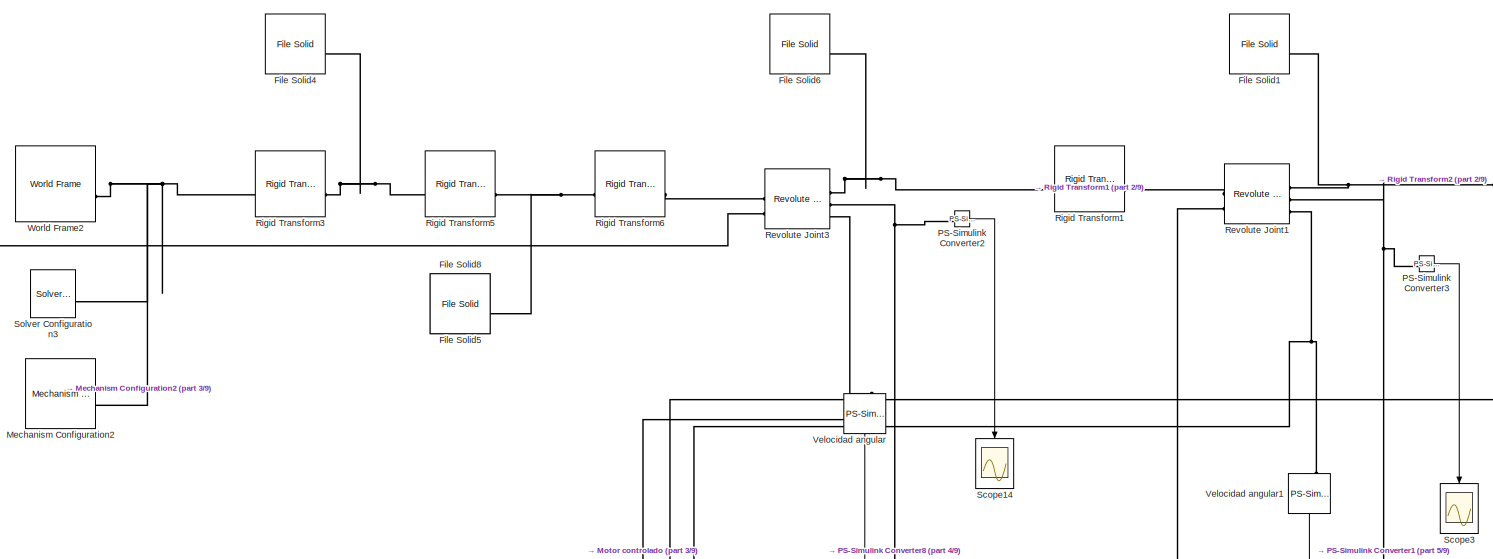
[diagram: root canvas - part 1/9, top left region]
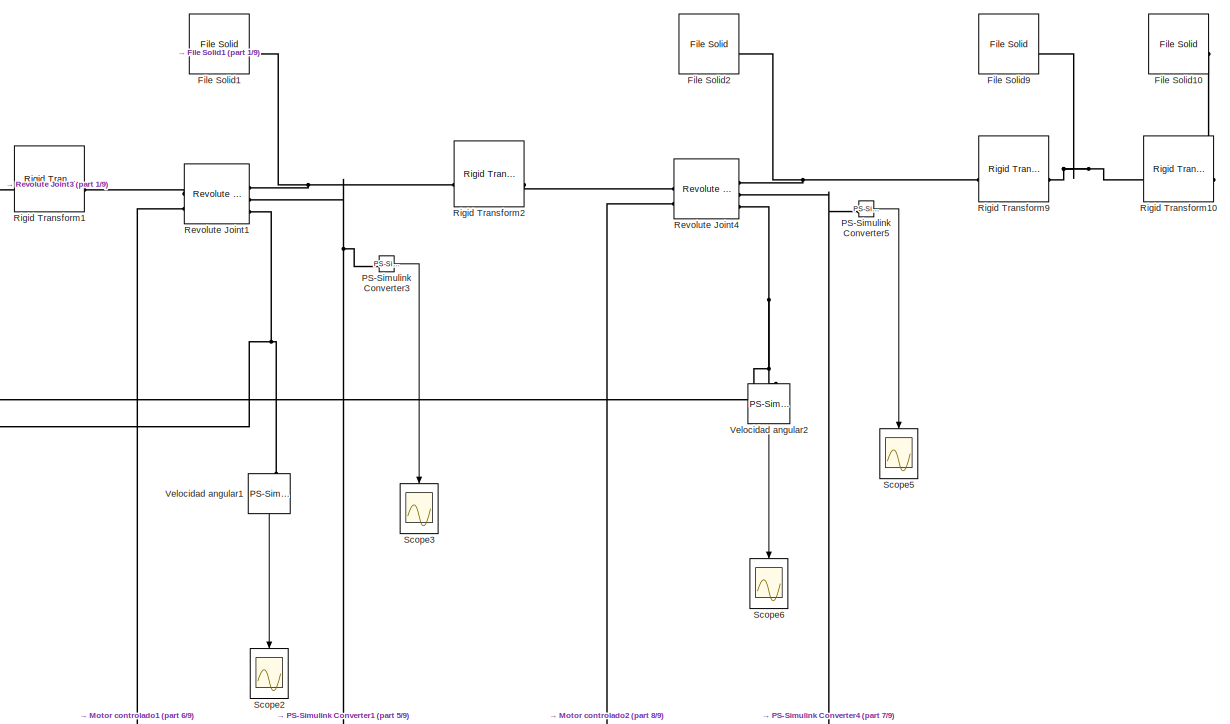
[diagram: root canvas - part 2/9, top center region]
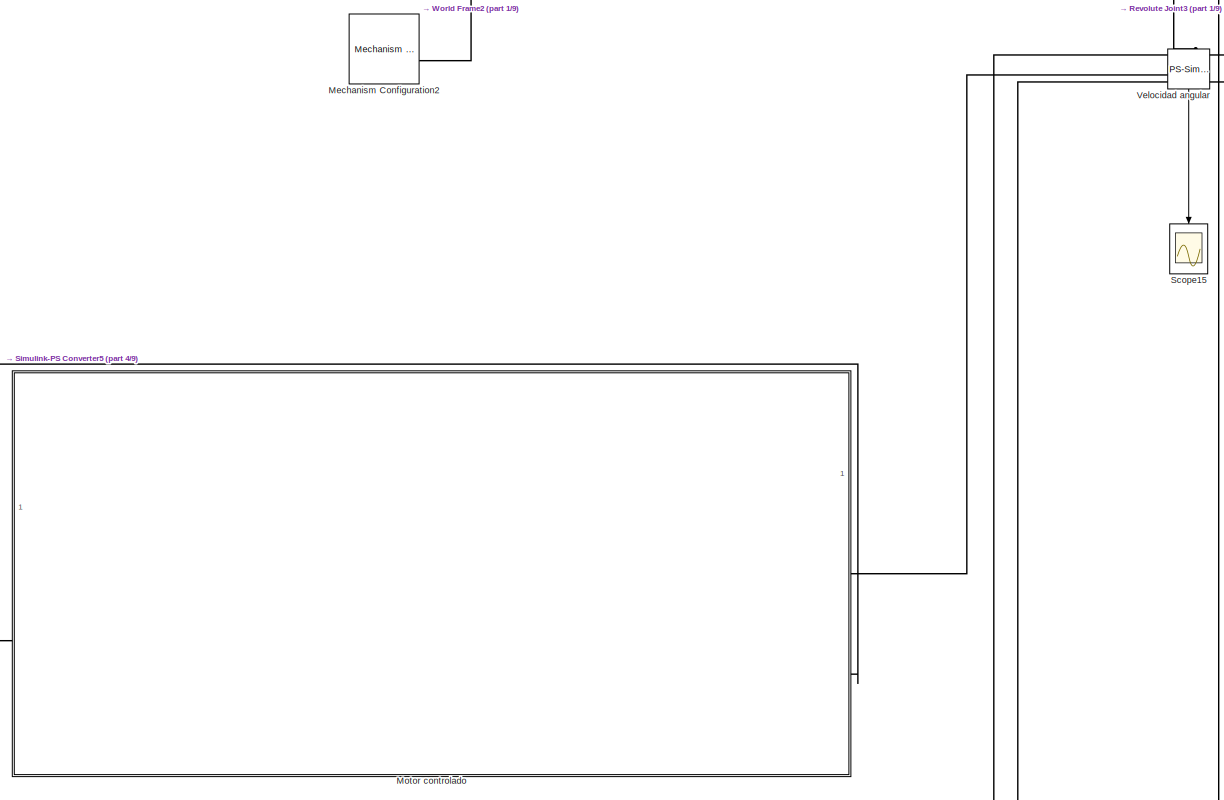
[diagram: root canvas - part 3/9, top left region]
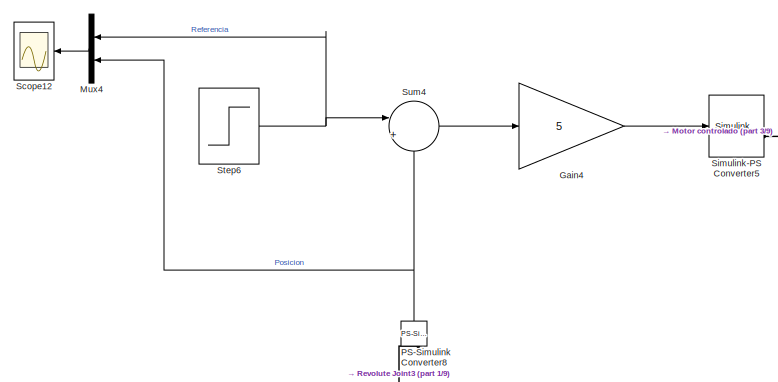
[diagram: root canvas - part 4/9, top left region]
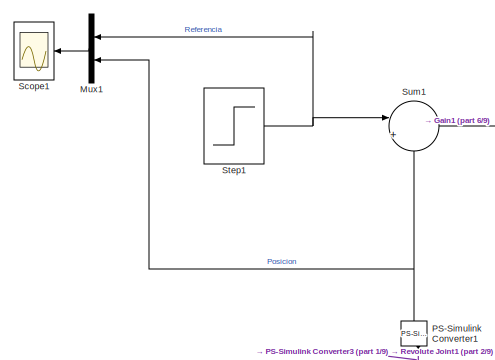
[diagram: root canvas - part 5/9, top left region]
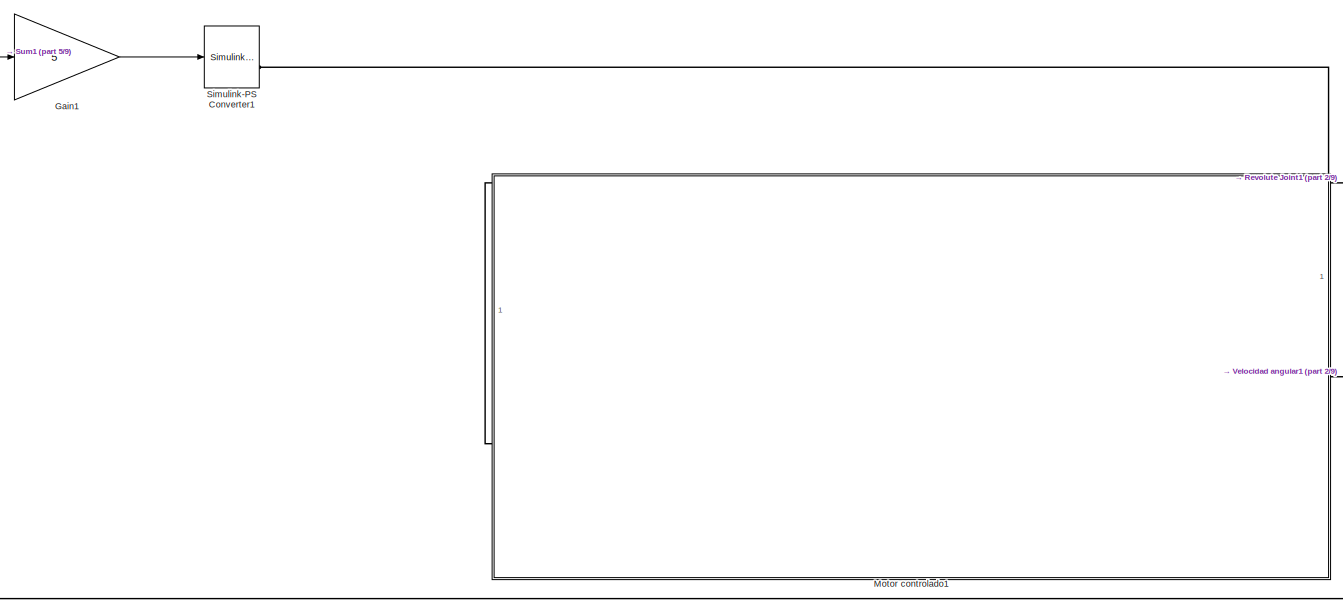
[diagram: root canvas - part 6/9, top left region]
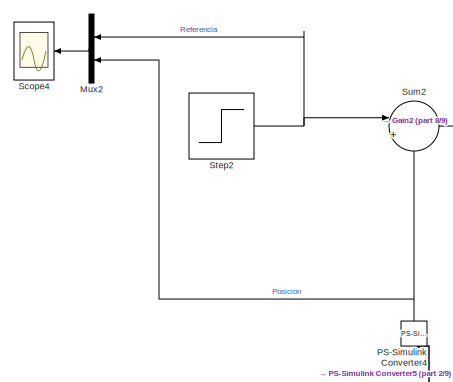
[diagram: root canvas - part 7/9, middle left region]
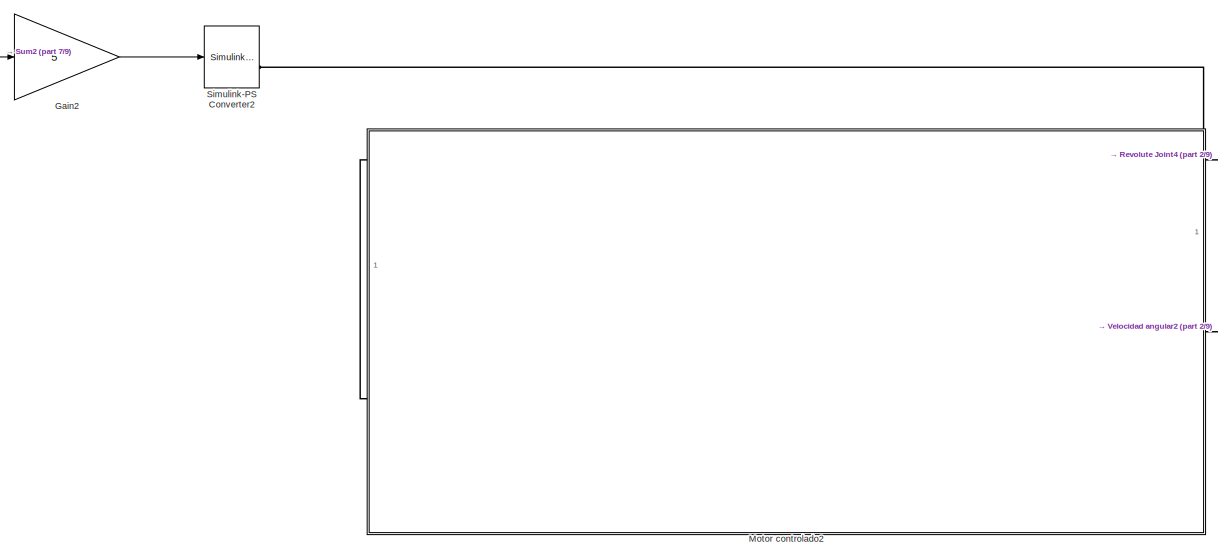
[diagram: root canvas - part 8/9, middle left region]
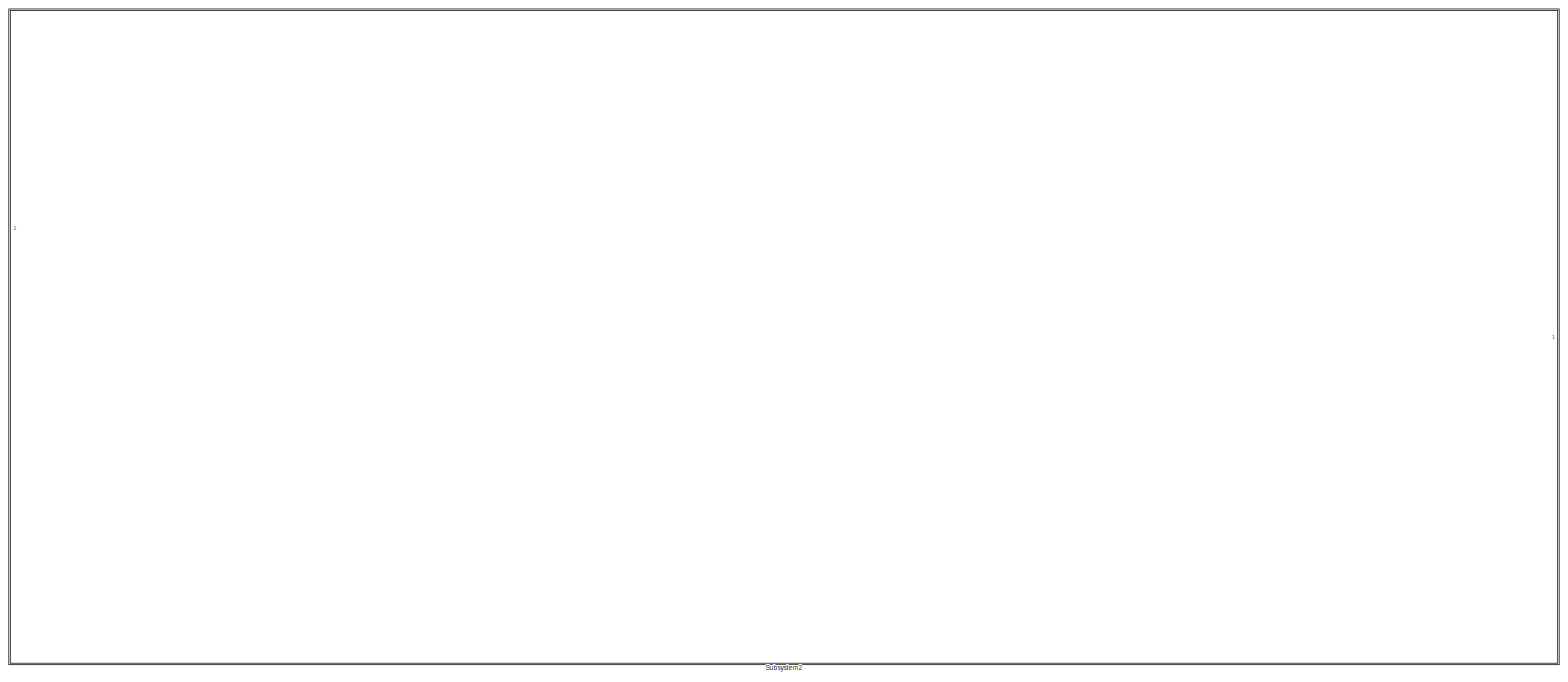
[diagram: root canvas - part 9/9, bottom right region]
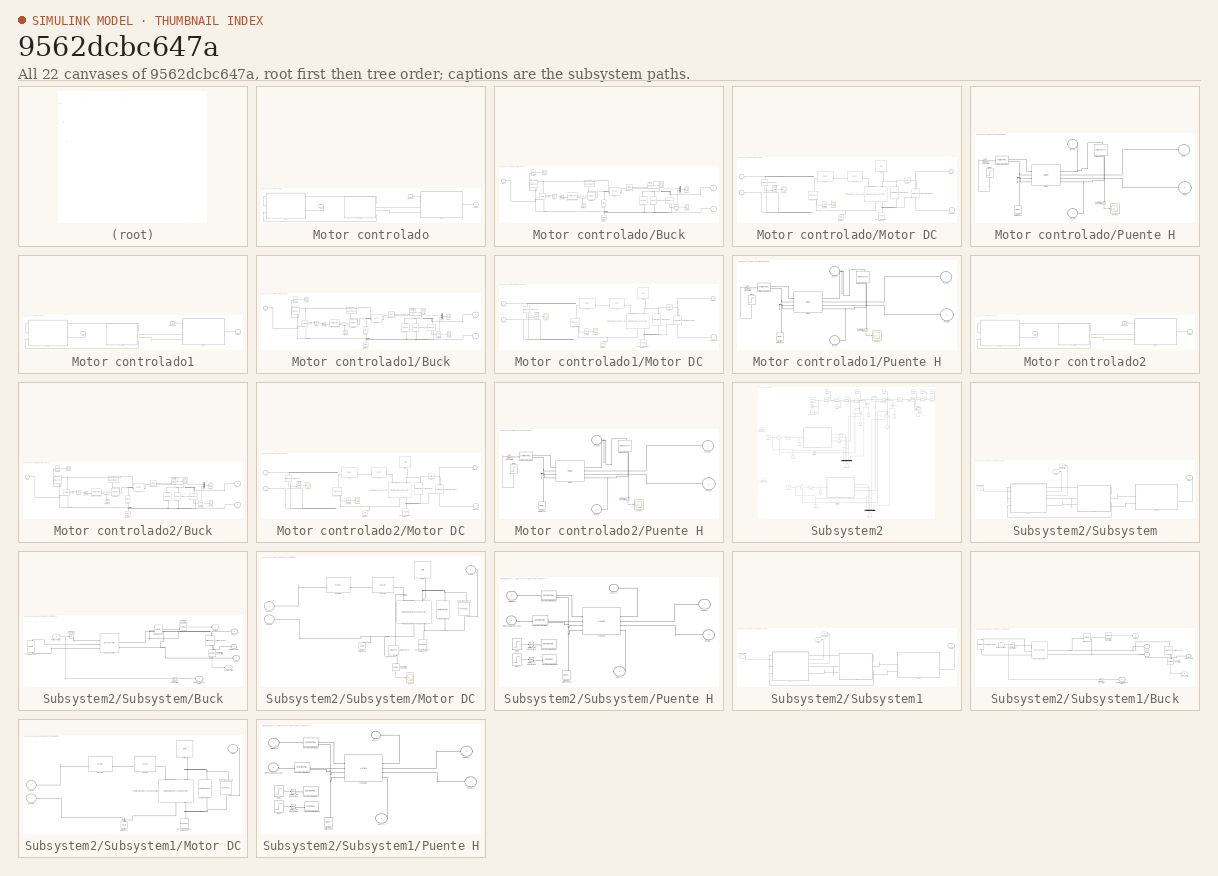
[diagram: thumbnail index - all 22 canvases of the model, root first then tree order]
MODEL slx_9562dcbc647a
KIND model
CONFIG AbsTol = auto
CONFIG EnableMultiTasking = on
CONFIG FixedStep = 0.002
CONFIG MaxStep = auto
CONFIG MinStep = auto
CONFIG RelTol = 1e-3
CONFIG SampleTimeConstraint = Unconstrained
CONFIG SolverName = VariableStepAuto
CONFIG StartTime = 0.0
CONFIG StopTime = 10.0
BLOCK [Reference] File Solid1  REF=sm_lib/Body Elements/File Solid
  SourceBlock = sm_lib/Body Elements/File Solid
  SourceType = File Solid
BLOCK [Reference] File Solid10  REF=sm_lib/Body Elements/File Solid
  SourceBlock = sm_lib/Body Elements/File Solid
  SourceType = File Solid
BLOCK [Reference] File Solid2  REF=sm_lib/Body Elements/File Solid
  SourceBlock = sm_lib/Body Elements/File Solid
  SourceType = File Solid
BLOCK [Reference] File Solid4  REF=sm_lib/Body Elements/File Solid
  SourceBlock = sm_lib/Body Elements/File Solid
  SourceType = File Solid
BLOCK [Reference] File Solid5  REF=sm_lib/Body Elements/File Solid
  SourceBlock = sm_lib/Body Elements/File Solid
  SourceType = File Solid
BLOCK [Reference] File Solid6  REF=sm_lib/Body Elements/File Solid
  SourceBlock = sm_lib/Body Elements/File Solid
  SourceType = File Solid
BLOCK [Reference] File Solid8  REF=sm_lib/Body Elements/File Solid
  SourceBlock = sm_lib/Body Elements/File Solid
  SourceType = File Solid
BLOCK [Reference] File Solid9  REF=sm_lib/Body Elements/File Solid
  SourceBlock = sm_lib/Body Elements/File Solid
  SourceType = File Solid
BLOCK [Gain] Gain1
  Gain = 5
BLOCK [Gain] Gain2
  Gain = 5
BLOCK [Gain] Gain4
  Gain = 5
BLOCK [Reference] Mechanism Configuration2  REF=sm_lib/Utilities/Mechanism
Configuration
  SourceBlock = sm_lib/Utilities/Mechanism\nConfiguration
  SourceType = Mechanism\nConfiguration
BLOCK [SubSystem] Motor controlado
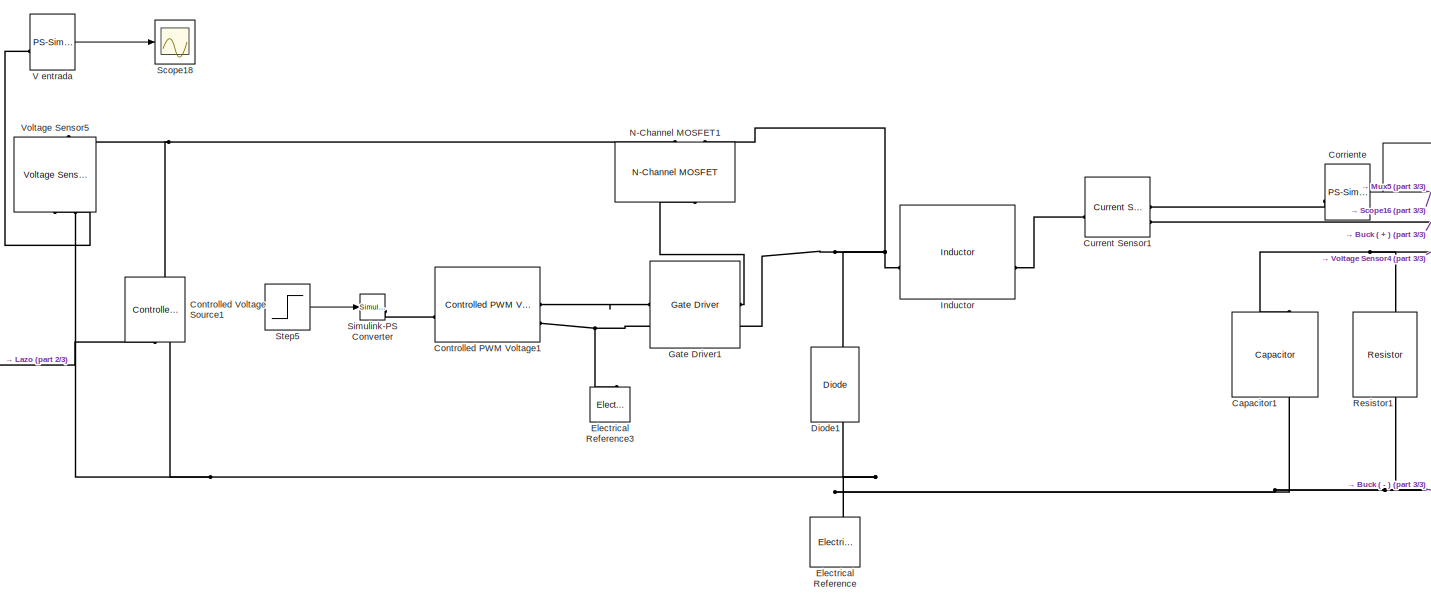
[diagram: Motor controlado/Buck - part 1/3, center side, full height]
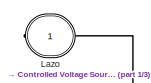
[diagram: Motor controlado/Buck - part 2/3, top left region]
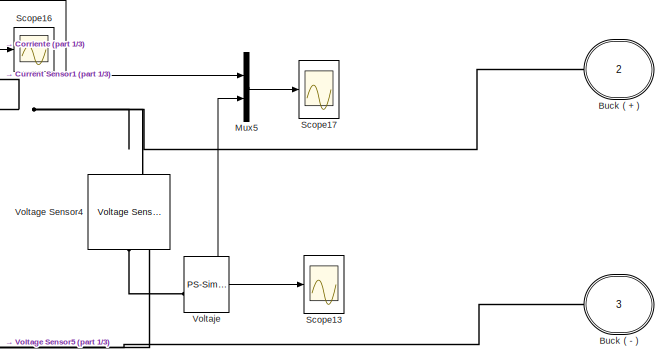
[diagram: Motor controlado/Buck - part 3/3, middle right region]
BLOCK [SubSystem] Motor controlado/Buck
BLOCK [PMIOPort] Motor controlado/Buck/Buck ( + )
  NameLocation = top
  Port = 2
  Side = Left
BLOCK [PMIOPort] Motor controlado/Buck/Buck ( - )
  NameLocation = top
  Port = 3
  Side = Left
BLOCK [Reference] Motor controlado/Buck/Capacitor1  REF=fl_lib/Electrical/Electrical Elements/Capacitor
  NameLocation = left
  SourceBlock = fl_lib/Electrical/Electrical Elements/Capacitor
  SourceType = Capacitor
BLOCK [Reference] Motor controlado/Buck/Controlled PWM Voltage1  REF=ee_lib/Integrated Circuits/Controlled PWM
Voltage
  SourceBlock = ee_lib/Integrated Circuits/Controlled PWM\nVoltage
  SourceType = Controlled PWM\nVoltage
BLOCK [Reference] Motor controlado/Buck/Controlled Voltage Source1  REF=fl_lib/Electrical/Electrical Sources/Controlled Voltage
Source
  NameLocation = right
  SourceBlock = fl_lib/Electrical/Electrical Sources/Controlled Voltage\nSource
  SourceType = Controlled Voltage\nSource
BLOCK [Reference] Motor controlado/Buck/Corriente  REF=nesl_utility/PS-Simulink
Converter
  SourceBlock = nesl_utility/PS-Simulink\nConverter
  SourceType = PS-Simulink\nConverter
BLOCK [Reference] Motor controlado/Buck/Current Sensor1  REF=fl_lib/Electrical/Electrical Sensors/Current Sensor
  SourceBlock = fl_lib/Electrical/Electrical Sensors/Current Sensor
  SourceType = Current Sensor
BLOCK [Reference] Motor controlado/Buck/Diode1  REF=ee_lib/Semiconductors &
Converters/Diode
  NameLocation = right
  SourceBlock = ee_lib/Semiconductors &\nConverters/Diode
  SourceType = Diode
BLOCK [Reference] Motor controlado/Buck/Electrical Reference  REF=fl_lib/Electrical/Electrical Elements/Electrical Reference
  NameLocation = right
  SourceBlock = fl_lib/Electrical/Electrical Elements/Electrical Reference
  SourceType = Electrical Reference
BLOCK [Reference] Motor controlado/Buck/Electrical Reference3  REF=fl_lib/Electrical/Electrical Elements/Electrical Reference
  NameLocation = right
  SourceBlock = fl_lib/Electrical/Electrical Elements/Electrical Reference
  SourceType = Electrical Reference
BLOCK [Reference] Motor controlado/Buck/Gate Driver1  REF=ee_lib/Semiconductors &
Converters/Gate Driver
  SourceBlock = ee_lib/Semiconductors &\nConverters/Gate Driver
  SourceType = Gate Driver
BLOCK [Reference] Motor controlado/Buck/Inductor  REF=fl_lib/Electrical/Electrical Elements/Inductor
  SourceBlock = fl_lib/Electrical/Electrical Elements/Inductor
  SourceType = Inductor
BLOCK [PMIOPort] Motor controlado/Buck/Lazo
  Side = Right
BLOCK [Mux] Motor controlado/Buck/Mux5
  DisplayOption = bar
  Inputs = 2
BLOCK [Reference] Motor controlado/Buck/N-Channel MOSFET1  REF=ee_lib/Semiconductors &
Converters/N-Channel MOSFET
  NameLocation = right
  SourceBlock = ee_lib/Semiconductors &\nConverters/N-Channel MOSFET
  SourceType = N-Channel MOSFET
BLOCK [Reference] Motor controlado/Buck/Resistor1  REF=fl_lib/Electrical/Electrical Elements/Resistor
  NameLocation = left
  SourceBlock = fl_lib/Electrical/Electrical Elements/Resistor
  SourceType = Resistor
BLOCK [Scope] Motor controlado/Buck/Scope13
  Floating = off
  NumInputPorts = 1
  ScopeSpecificationString = Simulink.scopes.TimeScopeBlockCfg('CurrentConfiguration', extmgr.ConfigurationSet(extmgr.Configuration('Core','General UI',true),extmgr.Configuration('Core','Source UI',true),extmgr.Configuration('Sources','WiredSimulink',true,'DataLoggingVariableName','ScopeData15'),extmgr.Configuration('Visuals','Time Domain',true,'SerializedDisplays',{struct('MinYLimReal','-2.20733','MaxYLimReal','19.86599','YL...<+1569ch>
BLOCK [Scope] Motor controlado/Buck/Scope16
  Floating = off
  NumInputPorts = 1
  ScopeSpecificationString = Simulink.scopes.TimeScopeBlockCfg('CurrentConfiguration', extmgr.ConfigurationSet(extmgr.Configuration('Core','General UI',true),extmgr.Configuration('Core','Source UI',true),extmgr.Configuration('Sources','WiredSimulink',true,'DataLoggingVariableName','ScopeData16'),extmgr.Configuration('Visuals','Time Domain',true,'SerializedDisplays',{struct('MinYLimReal','-1.19236','MaxYLimReal','10.73127','YL...<+1571ch>
BLOCK [Scope] Motor controlado/Buck/Scope17
  Floating = off
  NumInputPorts = 1
  ScopeSpecificationString = Simulink.scopes.TimeScopeBlockCfg('CurrentConfiguration', extmgr.ConfigurationSet(extmgr.Configuration('Core','General UI',true),extmgr.Configuration('Core','Source UI',true),extmgr.Configuration('Sources','WiredSimulink',true,'DataLoggingVariableName','ScopeData17'),extmgr.Configuration('Visuals','Time Domain',true,'SerializedDisplays',{struct('MinYLimReal','-2.20733','MaxYLimReal','19.86599','YL...<+1664ch>
BLOCK [Scope] Motor controlado/Buck/Scope18
  Floating = off
  NumInputPorts = 1
  ScopeSpecificationString = Simulink.scopes.TimeScopeBlockCfg('CurrentConfiguration', extmgr.ConfigurationSet(extmgr.Configuration('Core','General UI',true),extmgr.Configuration('Core','Source UI',true),extmgr.Configuration('Sources','WiredSimulink',true,'DataLoggingVariableName','ScopeData18'),extmgr.Configuration('Visuals','Time Domain',true,'SerializedDisplays',{struct('MinYLimReal','-1.77377','MaxYLimReal','20.03484','YL...<+1487ch>  <repeated x3 — deduplicated; at blocks: Scope18>
BLOCK [Reference] Motor controlado/Buck/Simulink-PS Converter  REF=nesl_utility/Simulink-PS
Converter
  SourceBlock = nesl_utility/Simulink-PS\nConverter
  SourceType = Simulink-PS\nConverter
BLOCK [Step] Motor controlado/Buck/Step5
  After = 5
  SampleTime = 0
  Time = 0
BLOCK [Reference] Motor controlado/Buck/V entrada  REF=nesl_utility/PS-Simulink
Converter
  SourceBlock = nesl_utility/PS-Simulink\nConverter
  SourceType = PS-Simulink\nConverter
BLOCK [Reference] Motor controlado/Buck/Voltage Sensor4  REF=fl_lib/Electrical/Electrical Sensors/Voltage Sensor
  NameLocation = right
  SourceBlock = fl_lib/Electrical/Electrical Sensors/Voltage Sensor
  SourceType = Voltage Sensor
BLOCK [Reference] Motor controlado/Buck/Voltage Sensor5  REF=fl_lib/Electrical/Electrical Sensors/Voltage Sensor
  NameLocation = right
  SourceBlock = fl_lib/Electrical/Electrical Sensors/Voltage Sensor
  SourceType = Voltage Sensor
BLOCK [Reference] Motor controlado/Buck/Voltaje  REF=nesl_utility/PS-Simulink
Converter
  SourceBlock = nesl_utility/PS-Simulink\nConverter
  SourceType = PS-Simulink\nConverter
BLOCK [PMIOPort] Motor controlado/Entrada w
  Port = 2
  Side = Right
BLOCK [PMIOPort] Motor controlado/Lazo
  NameLocation = top
  Port = 3
  Side = Right
BLOCK [SubSystem] Motor controlado/Motor DC
BLOCK [Reference] Motor controlado/Motor DC/Electrical Reference1  REF=fl_lib/Electrical/Electrical Elements/Electrical Reference
  NameLocation = right
  SourceBlock = fl_lib/Electrical/Electrical Elements/Electrical Reference
  SourceType = Electrical Reference
BLOCK [PMIOPort] Motor controlado/Motor DC/Entrada w
  Port = 2
  Side = Right
BLOCK [Reference] Motor controlado/Motor DC/Gear Box  REF=fl_lib/Mechanical/Mechanisms/Gear Box
  SourceBlock = fl_lib/Mechanical/Mechanisms/Gear Box
  SourceType = Gear Box
BLOCK [Reference] Motor controlado/Motor DC/Inductor2  REF=fl_lib/Electrical/Electrical Elements/Inductor
  SourceBlock = fl_lib/Electrical/Electrical Elements/Inductor
  SourceType = Inductor
BLOCK [Reference] Motor controlado/Motor DC/Inertia1  REF=fl_lib/Mechanical/Rotational Elements/Inertia
  NameLocation = left
  SourceBlock = fl_lib/Mechanical/Rotational Elements/Inertia
  SourceType = Inertia
BLOCK [Reference] Motor controlado/Motor DC/Mechanical Rotational Reference1  REF=fl_lib/Mechanical/Rotational Elements/Mechanical
Rotational Reference
  NameLocation = right
  SourceBlock = fl_lib/Mechanical/Rotational Elements/Mechanical\nRotational Reference
  SourceType = Mechanical\nRotational Reference
BLOCK [Reference] Motor controlado/Motor DC/PS-Simulink Converter2  REF=nesl_utility/PS-Simulink
Converter
  SourceBlock = nesl_utility/PS-Simulink\nConverter
  SourceType = PS-Simulink\nConverter
BLOCK [Reference] Motor controlado/Motor DC/PS-Simulink Converter3  REF=nesl_utility/PS-Simulink
Converter
  SourceBlock = nesl_utility/PS-Simulink\nConverter
  SourceType = PS-Simulink\nConverter
BLOCK [PMIOPort] Motor controlado/Motor DC/Puente ( + )
  Port = 3
  Side = Left
BLOCK [PMIOPort] Motor controlado/Motor DC/Puente ( - )
  Port = 4
  Side = Left
BLOCK [Reference] Motor controlado/Motor DC/Resistor2  REF=fl_lib/Electrical/Electrical Elements/Resistor
  SourceBlock = fl_lib/Electrical/Electrical Elements/Resistor
  SourceType = Resistor
BLOCK [Reference] Motor controlado/Motor DC/Rotational Damper1  REF=fl_lib/Mechanical/Rotational Elements/Rotational Damper
  SourceBlock = fl_lib/Mechanical/Rotational Elements/Rotational Damper
  SourceType = Rotational Damper
BLOCK [Reference] Motor controlado/Motor DC/Rotational Electromechanical Converter1  REF=fl_lib/Electrical/Electrical Elements/Rotational
Electromechanical
Converter
  NameLocation = left
  SourceBlock = fl_lib/Electrical/Electrical Elements/Rotational\nElectromechanical\nConverter
  SourceType = Rotational\nElectromechanical\nConverter
BLOCK [Reference] Motor controlado/Motor DC/Rotational Multibody Interface  REF=fl_lib/Mechanical/Multibody Interfaces/Rotational Multibody
Interface
  NameLocation = right
  SourceBlock = fl_lib/Mechanical/Multibody Interfaces/Rotational Multibody\nInterface
  SourceType = Rotational Multibody\nInterface
BLOCK [PMIOPort] Motor controlado/Motor DC/Salida Torque
  Side = Left
BLOCK [Scope] Motor controlado/Motor DC/Scope10
  Floating = off
  NumInputPorts = 1
  ScopeSpecificationString = Simulink.scopes.TimeScopeBlockCfg('CurrentConfiguration', extmgr.ConfigurationSet(extmgr.Configuration('Core','General UI',true),extmgr.Configuration('Core','Source UI',true),extmgr.Configuration('Sources','WiredSimulink',true,'DataLoggingVariableName','ScopeData5'),extmgr.Configuration('Visuals','Time Domain',true,'SerializedDisplays',{struct('MinYLimReal','-2.17758','MaxYLimReal','19.59819','YLa...<+1583ch>
BLOCK [Scope] Motor controlado/Motor DC/Scope11
  Floating = off
  NumInputPorts = 1
  ScopeSpecificationString = Simulink.scopes.TimeScopeBlockCfg('CurrentConfiguration', extmgr.ConfigurationSet(extmgr.Configuration('Core','General UI',true),extmgr.Configuration('Core','Source UI',true),extmgr.Configuration('Sources','WiredSimulink',true,'DataLoggingVariableName','ScopeData6'),extmgr.Configuration('Visuals','Time Domain',true,'SerializedDisplays',{struct('MinYLimReal','-2.17758','MaxYLimReal','19.59819','YLa...<+1631ch>
BLOCK [Reference] Motor controlado/Motor DC/Voltage Sensor1  REF=fl_lib/Electrical/Electrical Sensors/Voltage Sensor
  NameLocation = right
  SourceBlock = fl_lib/Electrical/Electrical Sensors/Voltage Sensor
  SourceType = Voltage Sensor
BLOCK [Reference] Motor controlado/Motor DC/Voltage Sensor2  REF=fl_lib/Electrical/Electrical Sensors/Voltage Sensor
  NameLocation = right
  SourceBlock = fl_lib/Electrical/Electrical Sensors/Voltage Sensor
  SourceType = Voltage Sensor
BLOCK [SubSystem] Motor controlado/Puente H
BLOCK [PMIOPort] Motor controlado/Puente H/Buck ( + )
  NameLocation = top
  Side = Right
BLOCK [PMIOPort] Motor controlado/Puente H/Buck ( - )
  Port = 4
  Side = Right
BLOCK [Reference] Motor controlado/Puente H/Controlled PWM Voltage3  REF=ee_lib/Integrated Circuits/Controlled PWM
Voltage
  SourceBlock = ee_lib/Integrated Circuits/Controlled PWM\nVoltage
  SourceType = Controlled PWM\nVoltage
BLOCK [Reference] Motor controlado/Puente H/Electrical Reference2  REF=fl_lib/Electrical/Electrical Elements/Electrical Reference
  NameLocation = right
  SourceBlock = fl_lib/Electrical/Electrical Elements/Electrical Reference
  SourceType = Electrical Reference
BLOCK [Reference] Motor controlado/Puente H/H-Bridge  REF=ee_lib/Semiconductors &
Converters/Converters/H-Bridge
  SourceBlock = ee_lib/Semiconductors &\nConverters/Converters/H-Bridge
  SourceType = H-Bridge
BLOCK [PMIOPort] Motor controlado/Puente H/Motor ( - )
  Port = 3
  Side = Right
BLOCK [PMIOPort] Motor controlado/Puente H/Motor( + )
  Port = 2
  Side = Right
BLOCK [Reference] Motor controlado/Puente H/PS-Simulink Converter3  REF=nesl_utility/PS-Simulink
Converter
  NameLocation = left
  SourceBlock = nesl_utility/PS-Simulink\nConverter
  SourceType = PS-Simulink\nConverter
BLOCK [Scope] Motor controlado/Puente H/Scope2
  Floating = off
  NumInputPorts = 1
  ScopeSpecificationString = Simulink.scopes.TimeScopeBlockCfg('CurrentConfiguration', extmgr.ConfigurationSet(extmgr.Configuration('Core','General UI',true),extmgr.Configuration('Core','Source UI',true),extmgr.Configuration('Sources','WiredSimulink',true,'DataLoggingVariableName','ScopeData4'),extmgr.Configuration('Visuals','Time Domain',true,'SerializedDisplays',{struct('MinYLimReal','-0.98104','MaxYLimReal','18.63969','YLa...<+1716ch>
BLOCK [Reference] Motor controlado/Puente H/Simulink-PS Converter4  REF=nesl_utility/Simulink-PS
Converter
  SourceBlock = nesl_utility/Simulink-PS\nConverter
  SourceType = Simulink-PS\nConverter
BLOCK [Step] Motor controlado/Puente H/Step4
  After = 0.6
  NameLocation = left
  SampleTime = 0
  Time = 0
BLOCK [Reference] Motor controlado/Puente H/Voltage Sensor1  REF=fl_lib/Electrical/Electrical Sensors/Voltage Sensor
  NameLocation = right
  SourceBlock = fl_lib/Electrical/Electrical Sensors/Voltage Sensor
  SourceType = Voltage Sensor
BLOCK [PMIOPort] Motor controlado/Salida Torque
  NameLocation = top
  Side = Left
BLOCK [SubSystem] Motor controlado1
BLOCK [SubSystem] Motor controlado1/Buck
BLOCK [PMIOPort] Motor controlado1/Buck/Buck ( + )
  NameLocation = top
  Port = 2
  Side = Left
BLOCK [PMIOPort] Motor controlado1/Buck/Buck ( - )
  NameLocation = top
  Port = 3
  Side = Left
BLOCK [Reference] Motor controlado1/Buck/Capacitor1  REF=fl_lib/Electrical/Electrical Elements/Capacitor
  NameLocation = left
  SourceBlock = fl_lib/Electrical/Electrical Elements/Capacitor
  SourceType = Capacitor
BLOCK [Reference] Motor controlado1/Buck/Controlled PWM Voltage1  REF=ee_lib/Integrated Circuits/Controlled PWM
Voltage
  SourceBlock = ee_lib/Integrated Circuits/Controlled PWM\nVoltage
  SourceType = Controlled PWM\nVoltage
BLOCK [Reference] Motor controlado1/Buck/Controlled Voltage Source1  REF=fl_lib/Electrical/Electrical Sources/Controlled Voltage
Source
  NameLocation = right
  SourceBlock = fl_lib/Electrical/Electrical Sources/Controlled Voltage\nSource
  SourceType = Controlled Voltage\nSource
BLOCK [Reference] Motor controlado1/Buck/Current Sensor1  REF=fl_lib/Electrical/Electrical Sensors/Current Sensor
  SourceBlock = fl_lib/Electrical/Electrical Sensors/Current Sensor
  SourceType = Current Sensor
BLOCK [Reference] Motor controlado1/Buck/Diode1  REF=ee_lib/Semiconductors &
Converters/Diode
  NameLocation = right
  SourceBlock = ee_lib/Semiconductors &\nConverters/Diode
  SourceType = Diode
BLOCK [Reference] Motor controlado1/Buck/Electrical Reference  REF=fl_lib/Electrical/Electrical Elements/Electrical Reference
  NameLocation = right
  SourceBlock = fl_lib/Electrical/Electrical Elements/Electrical Reference
  SourceType = Electrical Reference
BLOCK [Reference] Motor controlado1/Buck/Electrical Reference3  REF=fl_lib/Electrical/Electrical Elements/Electrical Reference
  NameLocation = right
  SourceBlock = fl_lib/Electrical/Electrical Elements/Electrical Reference
  SourceType = Electrical Reference
BLOCK [Reference] Motor controlado1/Buck/Gate Driver1  REF=ee_lib/Semiconductors &
Converters/Gate Driver
  SourceBlock = ee_lib/Semiconductors &\nConverters/Gate Driver
  SourceType = Gate Driver
BLOCK [Reference] Motor controlado1/Buck/Inductor  REF=fl_lib/Electrical/Electrical Elements/Inductor
  SourceBlock = fl_lib/Electrical/Electrical Elements/Inductor
  SourceType = Inductor
BLOCK [PMIOPort] Motor controlado1/Buck/Lazo
  Side = Right
BLOCK [Mux] Motor controlado1/Buck/Mux5
  DisplayOption = bar
  Inputs = 2
BLOCK [Reference] Motor controlado1/Buck/N-Channel MOSFET1  REF=ee_lib/Semiconductors &
Converters/N-Channel MOSFET
  NameLocation = right
  SourceBlock = ee_lib/Semiconductors &\nConverters/N-Channel MOSFET
  SourceType = N-Channel MOSFET
BLOCK [Reference] Motor controlado1/Buck/PS-Simulink Converter6  REF=nesl_utility/PS-Simulink
Converter
  SourceBlock = nesl_utility/PS-Simulink\nConverter
  SourceType = PS-Simulink\nConverter
BLOCK [Reference] Motor controlado1/Buck/PS-Simulink Converter7  REF=nesl_utility/PS-Simulink
Converter
  SourceBlock = nesl_utility/PS-Simulink\nConverter
  SourceType = PS-Simulink\nConverter
BLOCK [Reference] Motor controlado1/Buck/Resistor1  REF=fl_lib/Electrical/Electrical Elements/Resistor
  NameLocation = left
  SourceBlock = fl_lib/Electrical/Electrical Elements/Resistor
  SourceType = Resistor
BLOCK [Scope] Motor controlado1/Buck/Scope13
  Floating = off
  NumInputPorts = 1
  ScopeSpecificationString = Simulink.scopes.TimeScopeBlockCfg('CurrentConfiguration', extmgr.ConfigurationSet(extmgr.Configuration('Core','General UI',true),extmgr.Configuration('Core','Source UI',true),extmgr.Configuration('Sources','WiredSimulink',true,'DataLoggingVariableName','ScopeData15'),extmgr.Configuration('Visuals','Time Domain',true,'SerializedDisplays',{struct('MinYLimReal','-2.20733','MaxYLimReal','19.86599','YL...<+1500ch>
BLOCK [Scope] Motor controlado1/Buck/Scope16
  Floating = off
  NumInputPorts = 1
  ScopeSpecificationString = Simulink.scopes.TimeScopeBlockCfg('CurrentConfiguration', extmgr.ConfigurationSet(extmgr.Configuration('Core','General UI',true),extmgr.Configuration('Core','Source UI',true),extmgr.Configuration('Sources','WiredSimulink',true,'DataLoggingVariableName','ScopeData16'),extmgr.Configuration('Visuals','Time Domain',true,'SerializedDisplays',{struct('MinYLimReal','-1.15886','MaxYLimReal','10.42975','YL...<+1500ch>
BLOCK [Scope] Motor controlado1/Buck/Scope17
  Floating = off
  NumInputPorts = 1
  ScopeSpecificationString = Simulink.scopes.TimeScopeBlockCfg('CurrentConfiguration', extmgr.ConfigurationSet(extmgr.Configuration('Core','General UI',true),extmgr.Configuration('Core','Source UI',true),extmgr.Configuration('Sources','WiredSimulink',true,'DataLoggingVariableName','ScopeData17'),extmgr.Configuration('Visuals','Time Domain',true,'SerializedDisplays',{struct('MinYLimReal','-2.20864','MaxYLimReal','19.87776','YL...<+1525ch>
BLOCK [Scope] Motor controlado1/Buck/Scope18
  Floating = off
  NumInputPorts = 1
BLOCK [Reference] Motor controlado1/Buck/Simulink-PS Converter  REF=nesl_utility/Simulink-PS
Converter
  SourceBlock = nesl_utility/Simulink-PS\nConverter
  SourceType = Simulink-PS\nConverter
BLOCK [Step] Motor controlado1/Buck/Step5
  After = 5
  SampleTime = 0
  Time = 0
BLOCK [Reference] Motor controlado1/Buck/V entrada  REF=nesl_utility/PS-Simulink
Converter
  SourceBlock = nesl_utility/PS-Simulink\nConverter
  SourceType = PS-Simulink\nConverter
BLOCK [Reference] Motor controlado1/Buck/Voltage Sensor4  REF=fl_lib/Electrical/Electrical Sensors/Voltage Sensor
  NameLocation = right
  SourceBlock = fl_lib/Electrical/Electrical Sensors/Voltage Sensor
  SourceType = Voltage Sensor
BLOCK [Reference] Motor controlado1/Buck/Voltage Sensor5  REF=fl_lib/Electrical/Electrical Sensors/Voltage Sensor
  NameLocation = right
  SourceBlock = fl_lib/Electrical/Electrical Sensors/Voltage Sensor
  SourceType = Voltage Sensor
BLOCK [PMIOPort] Motor controlado1/Entrada w
  Port = 2
  Side = Right
BLOCK [PMIOPort] Motor controlado1/Lazo
  NameLocation = top
  Port = 3
  Side = Right
BLOCK [SubSystem] Motor controlado1/Motor DC
BLOCK [Reference] Motor controlado1/Motor DC/Electrical Reference1  REF=fl_lib/Electrical/Electrical Elements/Electrical Reference
  NameLocation = right
  SourceBlock = fl_lib/Electrical/Electrical Elements/Electrical Reference
  SourceType = Electrical Reference
BLOCK [PMIOPort] Motor controlado1/Motor DC/Entrada w
  Port = 2
  Side = Right
BLOCK [Reference] Motor controlado1/Motor DC/Gear Box  REF=fl_lib/Mechanical/Mechanisms/Gear Box
  SourceBlock = fl_lib/Mechanical/Mechanisms/Gear Box
  SourceType = Gear Box
BLOCK [Reference] Motor controlado1/Motor DC/Inductor2  REF=fl_lib/Electrical/Electrical Elements/Inductor
  SourceBlock = fl_lib/Electrical/Electrical Elements/Inductor
  SourceType = Inductor
BLOCK [Reference] Motor controlado1/Motor DC/Inertia1  REF=fl_lib/Mechanical/Rotational Elements/Inertia
  NameLocation = left
  SourceBlock = fl_lib/Mechanical/Rotational Elements/Inertia
  SourceType = Inertia
BLOCK [Reference] Motor controlado1/Motor DC/Mechanical Rotational Reference1  REF=fl_lib/Mechanical/Rotational Elements/Mechanical
Rotational Reference
  NameLocation = right
  SourceBlock = fl_lib/Mechanical/Rotational Elements/Mechanical\nRotational Reference
  SourceType = Mechanical\nRotational Reference
BLOCK [Reference] Motor controlado1/Motor DC/PS-Simulink Converter2  REF=nesl_utility/PS-Simulink
Converter
  SourceBlock = nesl_utility/PS-Simulink\nConverter
  SourceType = PS-Simulink\nConverter
BLOCK [Reference] Motor controlado1/Motor DC/PS-Simulink Converter3  REF=nesl_utility/PS-Simulink
Converter
  SourceBlock = nesl_utility/PS-Simulink\nConverter
  SourceType = PS-Simulink\nConverter
BLOCK [PMIOPort] Motor controlado1/Motor DC/Puente ( + )
  Port = 3
  Side = Left
BLOCK [PMIOPort] Motor controlado1/Motor DC/Puente ( - )
  Port = 4
  Side = Left
BLOCK [Reference] Motor controlado1/Motor DC/Resistor2  REF=fl_lib/Electrical/Electrical Elements/Resistor
  SourceBlock = fl_lib/Electrical/Electrical Elements/Resistor
  SourceType = Resistor
BLOCK [Reference] Motor controlado1/Motor DC/Rotational Damper1  REF=fl_lib/Mechanical/Rotational Elements/Rotational Damper
  SourceBlock = fl_lib/Mechanical/Rotational Elements/Rotational Damper
  SourceType = Rotational Damper
BLOCK [Reference] Motor controlado1/Motor DC/Rotational Electromechanical Converter1  REF=fl_lib/Electrical/Electrical Elements/Rotational
Electromechanical
Converter
  NameLocation = left
  SourceBlock = fl_lib/Electrical/Electrical Elements/Rotational\nElectromechanical\nConverter
  SourceType = Rotational\nElectromechanical\nConverter
BLOCK [Reference] Motor controlado1/Motor DC/Rotational Multibody Interface  REF=fl_lib/Mechanical/Multibody Interfaces/Rotational Multibody
Interface
  NameLocation = right
  SourceBlock = fl_lib/Mechanical/Multibody Interfaces/Rotational Multibody\nInterface
  SourceType = Rotational Multibody\nInterface
BLOCK [PMIOPort] Motor controlado1/Motor DC/Salida Torque
  Side = Left
BLOCK [Scope] Motor controlado1/Motor DC/Scope10
  Floating = off
  NumInputPorts = 1
  ScopeSpecificationString = Simulink.scopes.TimeScopeBlockCfg('CurrentConfiguration', extmgr.ConfigurationSet(extmgr.Configuration('Core','General UI',true),extmgr.Configuration('Core','Source UI',true),extmgr.Configuration('Sources','WiredSimulink',true,'DataLoggingVariableName','ScopeData5'),extmgr.Configuration('Visuals','Time Domain',true,'SerializedDisplays',{struct('MinYLimReal','-2.49215','MaxYLimReal','22.36314','YLa...<+1499ch>
BLOCK [Scope] Motor controlado1/Motor DC/Scope11
  Floating = off
  NumInputPorts = 1
  ScopeSpecificationString = Simulink.scopes.TimeScopeBlockCfg('CurrentConfiguration', extmgr.ConfigurationSet(extmgr.Configuration('Core','General UI',true),extmgr.Configuration('Core','Source UI',true),extmgr.Configuration('Sources','WiredSimulink',true,'DataLoggingVariableName','ScopeData6'),extmgr.Configuration('Visuals','Time Domain',true,'SerializedDisplays',{struct('MinYLimReal','-2.49215','MaxYLimReal','22.36314','YLa...<+1499ch>
BLOCK [Reference] Motor controlado1/Motor DC/Voltage Sensor1  REF=fl_lib/Electrical/Electrical Sensors/Voltage Sensor
  NameLocation = right
  SourceBlock = fl_lib/Electrical/Electrical Sensors/Voltage Sensor
  SourceType = Voltage Sensor
BLOCK [Reference] Motor controlado1/Motor DC/Voltage Sensor2  REF=fl_lib/Electrical/Electrical Sensors/Voltage Sensor
  NameLocation = right
  SourceBlock = fl_lib/Electrical/Electrical Sensors/Voltage Sensor
  SourceType = Voltage Sensor
BLOCK [SubSystem] Motor controlado1/Puente H
BLOCK [PMIOPort] Motor controlado1/Puente H/Buck ( + )
  NameLocation = top
  Side = Right
BLOCK [PMIOPort] Motor controlado1/Puente H/Buck ( - )
  Port = 4
  Side = Right
BLOCK [Reference] Motor controlado1/Puente H/Controlled PWM Voltage3  REF=ee_lib/Integrated Circuits/Controlled PWM
Voltage
  SourceBlock = ee_lib/Integrated Circuits/Controlled PWM\nVoltage
  SourceType = Controlled PWM\nVoltage
BLOCK [Reference] Motor controlado1/Puente H/Electrical Reference2  REF=fl_lib/Electrical/Electrical Elements/Electrical Reference
  NameLocation = right
  SourceBlock = fl_lib/Electrical/Electrical Elements/Electrical Reference
  SourceType = Electrical Reference
BLOCK [Reference] Motor controlado1/Puente H/H-Bridge  REF=ee_lib/Semiconductors &
Converters/Converters/H-Bridge
  SourceBlock = ee_lib/Semiconductors &\nConverters/Converters/H-Bridge
  SourceType = H-Bridge
BLOCK [Reference] Motor controlado1/Puente H/PS-Simulink Converter3  REF=nesl_utility/PS-Simulink
Converter
  NameLocation = left
  SourceBlock = nesl_utility/PS-Simulink\nConverter
  SourceType = PS-Simulink\nConverter
BLOCK [PMIOPort] Motor controlado1/Puente H/Puente ( - )
  Port = 3
  Side = Right
BLOCK [PMIOPort] Motor controlado1/Puente H/Puente( + )
  Port = 2
  Side = Right
BLOCK [Scope] Motor controlado1/Puente H/Scope2
  Floating = off
  NumInputPorts = 1
  ScopeSpecificationString = Simulink.scopes.TimeScopeBlockCfg('CurrentConfiguration', extmgr.ConfigurationSet(extmgr.Configuration('Core','General UI',true),extmgr.Configuration('Core','Source UI',true),extmgr.Configuration('Sources','WiredSimulink',true,'DataLoggingVariableName','ScopeData4'),extmgr.Configuration('Visuals','Time Domain',true,'SerializedDisplays',{struct('MinYLimReal','-0.98104','MaxYLimReal','18.63969','YLa...<+1714ch>
BLOCK [Reference] Motor controlado1/Puente H/Simulink-PS Converter4  REF=nesl_utility/Simulink-PS
Converter
  SourceBlock = nesl_utility/Simulink-PS\nConverter
  SourceType = Simulink-PS\nConverter
BLOCK [Step] Motor controlado1/Puente H/Step4
  After = 0.6
  NameLocation = left
  SampleTime = 0
  Time = 0
BLOCK [Reference] Motor controlado1/Puente H/Voltage Sensor1  REF=fl_lib/Electrical/Electrical Sensors/Voltage Sensor
  NameLocation = right
  SourceBlock = fl_lib/Electrical/Electrical Sensors/Voltage Sensor
  SourceType = Voltage Sensor
BLOCK [PMIOPort] Motor controlado1/Salida Torque
  NameLocation = top
  Side = Left
BLOCK [SubSystem] Motor controlado2
BLOCK [SubSystem] Motor controlado2/Buck
BLOCK [PMIOPort] Motor controlado2/Buck/Buck ( + )
  NameLocation = top
  Port = 2
  Side = Left
BLOCK [PMIOPort] Motor controlado2/Buck/Buck ( - )
  NameLocation = top
  Port = 3
  Side = Left
BLOCK [Reference] Motor controlado2/Buck/Capacitor1  REF=fl_lib/Electrical/Electrical Elements/Capacitor
  NameLocation = left
  SourceBlock = fl_lib/Electrical/Electrical Elements/Capacitor
  SourceType = Capacitor
BLOCK [Reference] Motor controlado2/Buck/Controlled PWM Voltage1  REF=ee_lib/Integrated Circuits/Controlled PWM
Voltage
  SourceBlock = ee_lib/Integrated Circuits/Controlled PWM\nVoltage
  SourceType = Controlled PWM\nVoltage
BLOCK [Reference] Motor controlado2/Buck/Controlled Voltage Source1  REF=fl_lib/Electrical/Electrical Sources/Controlled Voltage
Source
  NameLocation = right
  SourceBlock = fl_lib/Electrical/Electrical Sources/Controlled Voltage\nSource
  SourceType = Controlled Voltage\nSource
BLOCK [Reference] Motor controlado2/Buck/Current Sensor1  REF=fl_lib/Electrical/Electrical Sensors/Current Sensor
  SourceBlock = fl_lib/Electrical/Electrical Sensors/Current Sensor
  SourceType = Current Sensor
BLOCK [Reference] Motor controlado2/Buck/Diode1  REF=ee_lib/Semiconductors &
Converters/Diode
  NameLocation = right
  SourceBlock = ee_lib/Semiconductors &\nConverters/Diode
  SourceType = Diode
BLOCK [Reference] Motor controlado2/Buck/Electrical Reference  REF=fl_lib/Electrical/Electrical Elements/Electrical Reference
  NameLocation = right
  SourceBlock = fl_lib/Electrical/Electrical Elements/Electrical Reference
  SourceType = Electrical Reference
BLOCK [Reference] Motor controlado2/Buck/Electrical Reference3  REF=fl_lib/Electrical/Electrical Elements/Electrical Reference
  NameLocation = right
  SourceBlock = fl_lib/Electrical/Electrical Elements/Electrical Reference
  SourceType = Electrical Reference
BLOCK [Reference] Motor controlado2/Buck/Gate Driver1  REF=ee_lib/Semiconductors &
Converters/Gate Driver
  SourceBlock = ee_lib/Semiconductors &\nConverters/Gate Driver
  SourceType = Gate Driver
BLOCK [Reference] Motor controlado2/Buck/Inductor  REF=fl_lib/Electrical/Electrical Elements/Inductor
  SourceBlock = fl_lib/Electrical/Electrical Elements/Inductor
  SourceType = Inductor
BLOCK [PMIOPort] Motor controlado2/Buck/Lazo
  Side = Right
BLOCK [Mux] Motor controlado2/Buck/Mux5
  DisplayOption = bar
  Inputs = 2
BLOCK [Reference] Motor controlado2/Buck/N-Channel MOSFET1  REF=ee_lib/Semiconductors &
Converters/N-Channel MOSFET
  NameLocation = right
  SourceBlock = ee_lib/Semiconductors &\nConverters/N-Channel MOSFET
  SourceType = N-Channel MOSFET
BLOCK [Reference] Motor controlado2/Buck/PS-Simulink Converter6  REF=nesl_utility/PS-Simulink
Converter
  SourceBlock = nesl_utility/PS-Simulink\nConverter
  SourceType = PS-Simulink\nConverter
BLOCK [Reference] Motor controlado2/Buck/PS-Simulink Converter7  REF=nesl_utility/PS-Simulink
Converter
  SourceBlock = nesl_utility/PS-Simulink\nConverter
  SourceType = PS-Simulink\nConverter
BLOCK [Reference] Motor controlado2/Buck/Resistor1  REF=fl_lib/Electrical/Electrical Elements/Resistor
  NameLocation = left
  SourceBlock = fl_lib/Electrical/Electrical Elements/Resistor
  SourceType = Resistor
BLOCK [Scope] Motor controlado2/Buck/Scope13
  Floating = off
  NumInputPorts = 1
  ScopeSpecificationString = Simulink.scopes.TimeScopeBlockCfg('CurrentConfiguration', extmgr.ConfigurationSet(extmgr.Configuration('Core','General UI',true),extmgr.Configuration('Core','Source UI',true),extmgr.Configuration('Sources','WiredSimulink',true,'DataLoggingVariableName','ScopeData15'),extmgr.Configuration('Visuals','Time Domain',true,'SerializedDisplays',{struct('MinYLimReal','-2.20733','MaxYLimReal','19.86599','YL...<+1500ch>
BLOCK [Scope] Motor controlado2/Buck/Scope16
  Floating = off
  NumInputPorts = 1
  ScopeSpecificationString = Simulink.scopes.TimeScopeBlockCfg('CurrentConfiguration', extmgr.ConfigurationSet(extmgr.Configuration('Core','General UI',true),extmgr.Configuration('Core','Source UI',true),extmgr.Configuration('Sources','WiredSimulink',true,'DataLoggingVariableName','ScopeData16'),extmgr.Configuration('Visuals','Time Domain',true,'SerializedDisplays',{struct('MinYLimReal','-1.15886','MaxYLimReal','10.42975','YL...<+1500ch>
BLOCK [Scope] Motor controlado2/Buck/Scope17
  Floating = off
  NumInputPorts = 1
  ScopeSpecificationString = Simulink.scopes.TimeScopeBlockCfg('CurrentConfiguration', extmgr.ConfigurationSet(extmgr.Configuration('Core','General UI',true),extmgr.Configuration('Core','Source UI',true),extmgr.Configuration('Sources','WiredSimulink',true,'DataLoggingVariableName','ScopeData17'),extmgr.Configuration('Visuals','Time Domain',true,'SerializedDisplays',{struct('MinYLimReal','-2.20864','MaxYLimReal','19.87776','YL...<+1525ch>
BLOCK [Scope] Motor controlado2/Buck/Scope18
  Floating = off
  NumInputPorts = 1
BLOCK [Reference] Motor controlado2/Buck/Simulink-PS Converter  REF=nesl_utility/Simulink-PS
Converter
  SourceBlock = nesl_utility/Simulink-PS\nConverter
  SourceType = Simulink-PS\nConverter
BLOCK [Step] Motor controlado2/Buck/Step5
  After = 5
  SampleTime = 0
  Time = 0
BLOCK [Reference] Motor controlado2/Buck/V entrada  REF=nesl_utility/PS-Simulink
Converter
  SourceBlock = nesl_utility/PS-Simulink\nConverter
  SourceType = PS-Simulink\nConverter
BLOCK [Reference] Motor controlado2/Buck/Voltage Sensor4  REF=fl_lib/Electrical/Electrical Sensors/Voltage Sensor
  NameLocation = right
  SourceBlock = fl_lib/Electrical/Electrical Sensors/Voltage Sensor
  SourceType = Voltage Sensor
BLOCK [Reference] Motor controlado2/Buck/Voltage Sensor5  REF=fl_lib/Electrical/Electrical Sensors/Voltage Sensor
  NameLocation = right
  SourceBlock = fl_lib/Electrical/Electrical Sensors/Voltage Sensor
  SourceType = Voltage Sensor
BLOCK [PMIOPort] Motor controlado2/Entrada w
  Port = 2
  Side = Right
BLOCK [PMIOPort] Motor controlado2/Lazo
  NameLocation = top
  Port = 3
  Side = Right
BLOCK [SubSystem] Motor controlado2/Motor DC
BLOCK [Reference] Motor controlado2/Motor DC/Electrical Reference1  REF=fl_lib/Electrical/Electrical Elements/Electrical Reference
  NameLocation = right
  SourceBlock = fl_lib/Electrical/Electrical Elements/Electrical Reference
  SourceType = Electrical Reference
BLOCK [PMIOPort] Motor controlado2/Motor DC/Entrada w
  Port = 2
  Side = Right
BLOCK [Reference] Motor controlado2/Motor DC/Gear Box  REF=fl_lib/Mechanical/Mechanisms/Gear Box
  SourceBlock = fl_lib/Mechanical/Mechanisms/Gear Box
  SourceType = Gear Box
BLOCK [Reference] Motor controlado2/Motor DC/Inductor2  REF=fl_lib/Electrical/Electrical Elements/Inductor
  SourceBlock = fl_lib/Electrical/Electrical Elements/Inductor
  SourceType = Inductor
BLOCK [Reference] Motor controlado2/Motor DC/Inertia1  REF=fl_lib/Mechanical/Rotational Elements/Inertia
  NameLocation = left
  SourceBlock = fl_lib/Mechanical/Rotational Elements/Inertia
  SourceType = Inertia
BLOCK [Reference] Motor controlado2/Motor DC/Mechanical Rotational Reference1  REF=fl_lib/Mechanical/Rotational Elements/Mechanical
Rotational Reference
  NameLocation = right
  SourceBlock = fl_lib/Mechanical/Rotational Elements/Mechanical\nRotational Reference
  SourceType = Mechanical\nRotational Reference
BLOCK [Reference] Motor controlado2/Motor DC/PS-Simulink Converter2  REF=nesl_utility/PS-Simulink
Converter
  SourceBlock = nesl_utility/PS-Simulink\nConverter
  SourceType = PS-Simulink\nConverter
BLOCK [Reference] Motor controlado2/Motor DC/PS-Simulink Converter3  REF=nesl_utility/PS-Simulink
Converter
  SourceBlock = nesl_utility/PS-Simulink\nConverter
  SourceType = PS-Simulink\nConverter
BLOCK [PMIOPort] Motor controlado2/Motor DC/Puente ( + )
  Port = 3
  Side = Left
BLOCK [PMIOPort] Motor controlado2/Motor DC/Puente ( - )
  Port = 4
  Side = Left
BLOCK [Reference] Motor controlado2/Motor DC/Resistor2  REF=fl_lib/Electrical/Electrical Elements/Resistor
  SourceBlock = fl_lib/Electrical/Electrical Elements/Resistor
  SourceType = Resistor
BLOCK [Reference] Motor controlado2/Motor DC/Rotational Damper1  REF=fl_lib/Mechanical/Rotational Elements/Rotational Damper
  SourceBlock = fl_lib/Mechanical/Rotational Elements/Rotational Damper
  SourceType = Rotational Damper
BLOCK [Reference] Motor controlado2/Motor DC/Rotational Electromechanical Converter1  REF=fl_lib/Electrical/Electrical Elements/Rotational
Electromechanical
Converter
  NameLocation = left
  SourceBlock = fl_lib/Electrical/Electrical Elements/Rotational\nElectromechanical\nConverter
  SourceType = Rotational\nElectromechanical\nConverter
BLOCK [Reference] Motor controlado2/Motor DC/Rotational Multibody Interface  REF=fl_lib/Mechanical/Multibody Interfaces/Rotational Multibody
Interface
  NameLocation = right
  SourceBlock = fl_lib/Mechanical/Multibody Interfaces/Rotational Multibody\nInterface
  SourceType = Rotational Multibody\nInterface
BLOCK [PMIOPort] Motor controlado2/Motor DC/Salida Torque
  Side = Left
BLOCK [Scope] Motor controlado2/Motor DC/Scope10
  Floating = off
  NumInputPorts = 1
  ScopeSpecificationString = Simulink.scopes.TimeScopeBlockCfg('CurrentConfiguration', extmgr.ConfigurationSet(extmgr.Configuration('Core','General UI',true),extmgr.Configuration('Core','Source UI',true),extmgr.Configuration('Sources','WiredSimulink',true,'DataLoggingVariableName','ScopeData5'),extmgr.Configuration('Visuals','Time Domain',true,'SerializedDisplays',{struct('MinYLimReal','-2.49215','MaxYLimReal','22.36314','YLa...<+1499ch>
BLOCK [Scope] Motor controlado2/Motor DC/Scope11
  Floating = off
  NumInputPorts = 1
  ScopeSpecificationString = Simulink.scopes.TimeScopeBlockCfg('CurrentConfiguration', extmgr.ConfigurationSet(extmgr.Configuration('Core','General UI',true),extmgr.Configuration('Core','Source UI',true),extmgr.Configuration('Sources','WiredSimulink',true,'DataLoggingVariableName','ScopeData6'),extmgr.Configuration('Visuals','Time Domain',true,'SerializedDisplays',{struct('MinYLimReal','-2.49215','MaxYLimReal','22.36314','YLa...<+1499ch>
BLOCK [Reference] Motor controlado2/Motor DC/Voltage Sensor1  REF=fl_lib/Electrical/Electrical Sensors/Voltage Sensor
  NameLocation = right
  SourceBlock = fl_lib/Electrical/Electrical Sensors/Voltage Sensor
  SourceType = Voltage Sensor
BLOCK [Reference] Motor controlado2/Motor DC/Voltage Sensor2  REF=fl_lib/Electrical/Electrical Sensors/Voltage Sensor
  NameLocation = right
  SourceBlock = fl_lib/Electrical/Electrical Sensors/Voltage Sensor
  SourceType = Voltage Sensor
BLOCK [SubSystem] Motor controlado2/Puente H
BLOCK [PMIOPort] Motor controlado2/Puente H/Buck ( + )
  NameLocation = top
  Side = Right
BLOCK [PMIOPort] Motor controlado2/Puente H/Buck ( - )
  Port = 4
  Side = Right
BLOCK [Reference] Motor controlado2/Puente H/Controlled PWM Voltage3  REF=ee_lib/Integrated Circuits/Controlled PWM
Voltage
  SourceBlock = ee_lib/Integrated Circuits/Controlled PWM\nVoltage
  SourceType = Controlled PWM\nVoltage
BLOCK [Reference] Motor controlado2/Puente H/Electrical Reference2  REF=fl_lib/Electrical/Electrical Elements/Electrical Reference
  NameLocation = right
  SourceBlock = fl_lib/Electrical/Electrical Elements/Electrical Reference
  SourceType = Electrical Reference
BLOCK [Reference] Motor controlado2/Puente H/H-Bridge  REF=ee_lib/Semiconductors &
Converters/Converters/H-Bridge
  SourceBlock = ee_lib/Semiconductors &\nConverters/Converters/H-Bridge
  SourceType = H-Bridge
BLOCK [Reference] Motor controlado2/Puente H/PS-Simulink Converter3  REF=nesl_utility/PS-Simulink
Converter
  NameLocation = left
  SourceBlock = nesl_utility/PS-Simulink\nConverter
  SourceType = PS-Simulink\nConverter
BLOCK [PMIOPort] Motor controlado2/Puente H/Puente ( - )
  Port = 3
  Side = Right
BLOCK [PMIOPort] Motor controlado2/Puente H/Puente( + )
  Port = 2
  Side = Right
BLOCK [Scope] Motor controlado2/Puente H/Scope2
  Floating = off
  NumInputPorts = 1
  ScopeSpecificationString = Simulink.scopes.TimeScopeBlockCfg('CurrentConfiguration', extmgr.ConfigurationSet(extmgr.Configuration('Core','General UI',true),extmgr.Configuration('Core','Source UI',true),extmgr.Configuration('Sources','WiredSimulink',true,'DataLoggingVariableName','ScopeData4'),extmgr.Configuration('Visuals','Time Domain',true,'SerializedDisplays',{struct('MinYLimReal','-0.98104','MaxYLimReal','18.63969','YLa...<+1714ch>
BLOCK [Reference] Motor controlado2/Puente H/Simulink-PS Converter4  REF=nesl_utility/Simulink-PS
Converter
  SourceBlock = nesl_utility/Simulink-PS\nConverter
  SourceType = Simulink-PS\nConverter
BLOCK [Step] Motor controlado2/Puente H/Step4
  After = 0.6
  NameLocation = left
  SampleTime = 0
  Time = 0
BLOCK [Reference] Motor controlado2/Puente H/Voltage Sensor1  REF=fl_lib/Electrical/Electrical Sensors/Voltage Sensor
  NameLocation = right
  SourceBlock = fl_lib/Electrical/Electrical Sensors/Voltage Sensor
  SourceType = Voltage Sensor
BLOCK [PMIOPort] Motor controlado2/Salida Torque
  NameLocation = top
  Side = Left
BLOCK [Mux] Mux1
  DisplayOption = bar
  Inputs = 2
  NameLocation = top
BLOCK [Mux] Mux2
  DisplayOption = bar
  Inputs = 2
  NameLocation = top
BLOCK [Mux] Mux4
  DisplayOption = bar
  Inputs = 2
  NameLocation = top
BLOCK [Reference] PS-Simulink Converter1  REF=nesl_utility/PS-Simulink
Converter
  NameLocation = right
  SourceBlock = nesl_utility/PS-Simulink\nConverter
  SourceType = PS-Simulink\nConverter
BLOCK [Reference] PS-Simulink Converter2  REF=nesl_utility/PS-Simulink
Converter
  SourceBlock = nesl_utility/PS-Simulink\nConverter
  SourceType = PS-Simulink\nConverter
BLOCK [Reference] PS-Simulink Converter3  REF=nesl_utility/PS-Simulink
Converter
  SourceBlock = nesl_utility/PS-Simulink\nConverter
  SourceType = PS-Simulink\nConverter
BLOCK [Reference] PS-Simulink Converter4  REF=nesl_utility/PS-Simulink
Converter
  NameLocation = right
  SourceBlock = nesl_utility/PS-Simulink\nConverter
  SourceType = PS-Simulink\nConverter
BLOCK [Reference] PS-Simulink Converter5  REF=nesl_utility/PS-Simulink
Converter
  SourceBlock = nesl_utility/PS-Simulink\nConverter
  SourceType = PS-Simulink\nConverter
BLOCK [Reference] PS-Simulink Converter8  REF=nesl_utility/PS-Simulink
Converter
  NameLocation = right
  SourceBlock = nesl_utility/PS-Simulink\nConverter
  SourceType = PS-Simulink\nConverter
BLOCK [Reference] Revolute Joint1  REF=sm_lib/Joints/Revolute Joint
  SourceBlock = sm_lib/Joints/Revolute Joint
  SourceType = Revolute Joint
BLOCK [Reference] Revolute Joint3  REF=sm_lib/Joints/Revolute Joint
  SourceBlock = sm_lib/Joints/Revolute Joint
  SourceType = Revolute Joint
BLOCK [Reference] Revolute Joint4  REF=sm_lib/Joints/Revolute Joint
  SourceBlock = sm_lib/Joints/Revolute Joint
  SourceType = Revolute Joint
BLOCK [Reference] Rigid Transform1  REF=sm_lib/Frames and
Transforms/Rigid
Transform
  SourceBlock = sm_lib/Frames and\nTransforms/Rigid\nTransform
  SourceType = Rigid\nTransform
BLOCK [Reference] Rigid Transform10  REF=sm_lib/Frames and
Transforms/Rigid
Transform
  SourceBlock = sm_lib/Frames and\nTransforms/Rigid\nTransform
  SourceType = Rigid\nTransform
BLOCK [Reference] Rigid Transform2  REF=sm_lib/Frames and
Transforms/Rigid
Transform
  SourceBlock = sm_lib/Frames and\nTransforms/Rigid\nTransform
  SourceType = Rigid\nTransform
BLOCK [Reference] Rigid Transform3  REF=sm_lib/Frames and
Transforms/Rigid
Transform
  SourceBlock = sm_lib/Frames and\nTransforms/Rigid\nTransform
  SourceType = Rigid\nTransform
BLOCK [Reference] Rigid Transform5  REF=sm_lib/Frames and
Transforms/Rigid
Transform
  SourceBlock = sm_lib/Frames and\nTransforms/Rigid\nTransform
  SourceType = Rigid\nTransform
BLOCK [Reference] Rigid Transform6  REF=sm_lib/Frames and
Transforms/Rigid
Transform
  SourceBlock = sm_lib/Frames and\nTransforms/Rigid\nTransform
  SourceType = Rigid\nTransform
BLOCK [Reference] Rigid Transform9  REF=sm_lib/Frames and
Transforms/Rigid
Transform
  SourceBlock = sm_lib/Frames and\nTransforms/Rigid\nTransform
  SourceType = Rigid\nTransform
BLOCK [Scope] Scope1
  Floating = off
  NameLocation = top
  NumInputPorts = 1
  ScopeSpecificationString = Simulink.scopes.TimeScopeBlockCfg('CurrentConfiguration', extmgr.ConfigurationSet(extmgr.Configuration('Core','General UI',true),extmgr.Configuration('Core','Source UI',true),extmgr.Configuration('Sources','WiredSimulink',true,'DataLoggingVariableName','ScopeData10'),extmgr.Configuration('Visuals','Time Domain',true,'SerializedDisplays',{struct('MinYLimReal','-0.08933','MaxYLimReal','1.67659','YLa...<+1716ch>
BLOCK [Scope] Scope12
  Floating = off
  NameLocation = top
  NumInputPorts = 1
  ScopeSpecificationString = Simulink.scopes.TimeScopeBlockCfg('CurrentConfiguration', extmgr.ConfigurationSet(extmgr.Configuration('Core','General UI',true),extmgr.Configuration('Core','Source UI',true),extmgr.Configuration('Sources','WiredSimulink',true,'DataLoggingVariableName','ScopeData9'),extmgr.Configuration('Visuals','Time Domain',true,'SerializedDisplays',{struct('MinYLimReal','-2.01715','MaxYLimReal','2.44635','YLab...<+1715ch>
BLOCK [Scope] Scope14
  Floating = off
  NameLocation = left
  NumInputPorts = 1
  ScopeSpecificationString = Simulink.scopes.TimeScopeBlockCfg('CurrentConfiguration', extmgr.ConfigurationSet(extmgr.Configuration('Core','General UI',true),extmgr.Configuration('Core','Source UI',true),extmgr.Configuration('Sources','WiredSimulink',true,'DataLoggingVariableName','ScopeData7'),extmgr.Configuration('Visuals','Time Domain',true,'SerializedDisplays',{struct('MinYLimReal','-2.00697','MaxYLimReal','2.35475','YLab...<+1625ch>
BLOCK [Scope] Scope15
  Floating = off
  NameLocation = left
  NumInputPorts = 1
  ScopeSpecificationString = Simulink.scopes.TimeScopeBlockCfg('CurrentConfiguration', extmgr.ConfigurationSet(extmgr.Configuration('Core','General UI',true),extmgr.Configuration('Core','Source UI',true),extmgr.Configuration('Sources','WiredSimulink',true,'DataLoggingVariableName','ScopeData8'),extmgr.Configuration('Visuals','Time Domain',true,'SerializedDisplays',{struct('MinYLimReal','-0.20089','MaxYLimReal','1.80799','YLab...<+1625ch>
BLOCK [Scope] Scope2
  Floating = off
  NameLocation = left
  NumInputPorts = 1
  ScopeSpecificationString = Simulink.scopes.TimeScopeBlockCfg('CurrentConfiguration', extmgr.ConfigurationSet(extmgr.Configuration('Core','General UI',true),extmgr.Configuration('Core','Source UI',true),extmgr.Configuration('Sources','WiredSimulink',true,'DataLoggingVariableName','ScopeData11'),extmgr.Configuration('Visuals','Time Domain',true,'SerializedDisplays',{struct('MinYLimReal','-0.23196','MaxYLimReal','0.10725','YLa...<+1626ch>
BLOCK [Scope] Scope3
  Floating = off
  NameLocation = left
  NumInputPorts = 1
  ScopeSpecificationString = Simulink.scopes.TimeScopeBlockCfg('CurrentConfiguration', extmgr.ConfigurationSet(extmgr.Configuration('Core','General UI',true),extmgr.Configuration('Core','Source UI',true),extmgr.Configuration('Sources','WiredSimulink',true,'DataLoggingVariableName','ScopeData12'),extmgr.Configuration('Visuals','Time Domain',true,'SerializedDisplays',{struct('MinYLimReal','1.47342','MaxYLimReal','1.58237','YLab...<+1624ch>
BLOCK [Scope] Scope4
  Floating = off
  NameLocation = top
  NumInputPorts = 1
  ScopeSpecificationString = Simulink.scopes.TimeScopeBlockCfg('CurrentConfiguration', extmgr.ConfigurationSet(extmgr.Configuration('Core','General UI',true),extmgr.Configuration('Core','Source UI',true),extmgr.Configuration('Sources','WiredSimulink',true,'DataLoggingVariableName','ScopeData13'),extmgr.Configuration('Visuals','Time Domain',true,'SerializedDisplays',{struct('MinYLimReal','-1.30356','MaxYLimReal','1.26003','YLa...<+1716ch>
BLOCK [Scope] Scope5
  Floating = off
  NameLocation = left
  NumInputPorts = 1
  ScopeSpecificationString = Simulink.scopes.TimeScopeBlockCfg('CurrentConfiguration', extmgr.ConfigurationSet(extmgr.Configuration('Core','General UI',true),extmgr.Configuration('Core','Source UI',true),extmgr.Configuration('Sources','WiredSimulink',true,'DataLoggingVariableName','ScopeData14'),extmgr.Configuration('Visuals','Time Domain',true,'SerializedDisplays',{struct('MinYLimReal','-1.98811','MaxYLimReal','2.18499','YLa...<+1626ch>
BLOCK [Scope] Scope6
  Floating = off
  NameLocation = left
  NumInputPorts = 1
  ScopeSpecificationString = Simulink.scopes.TimeScopeBlockCfg('CurrentConfiguration', extmgr.ConfigurationSet(extmgr.Configuration('Core','General UI',true),extmgr.Configuration('Core','Source UI',true),extmgr.Configuration('Sources','WiredSimulink',true,'DataLoggingVariableName','ScopeData19'),extmgr.Configuration('Visuals','Time Domain',true,'SerializedDisplays',{struct('MinYLimReal','-0.21674','MaxYLimReal','1.95064','YLa...<+1626ch>
BLOCK [Reference] Simulink-PS Converter1  REF=nesl_utility/Simulink-PS
Converter
  SourceBlock = nesl_utility/Simulink-PS\nConverter
  SourceType = Simulink-PS\nConverter
BLOCK [Reference] Simulink-PS Converter2  REF=nesl_utility/Simulink-PS
Converter
  SourceBlock = nesl_utility/Simulink-PS\nConverter
  SourceType = Simulink-PS\nConverter
BLOCK [Reference] Simulink-PS Converter5  REF=nesl_utility/Simulink-PS
Converter
  SourceBlock = nesl_utility/Simulink-PS\nConverter
  SourceType = Simulink-PS\nConverter
BLOCK [Reference] Solver Configuration3  REF=nesl_utility/Solver
Configuration
  SourceBlock = nesl_utility/Solver\nConfiguration
  SourceType = Solver\nConfiguration
BLOCK [Step] Step1
  After = 1.5
  SampleTime = 0
  Time = 0
BLOCK [Step] Step2
  SampleTime = 0
  Time = 0
BLOCK [Step] Step6
  After = 2
  SampleTime = 0
  Time = 0
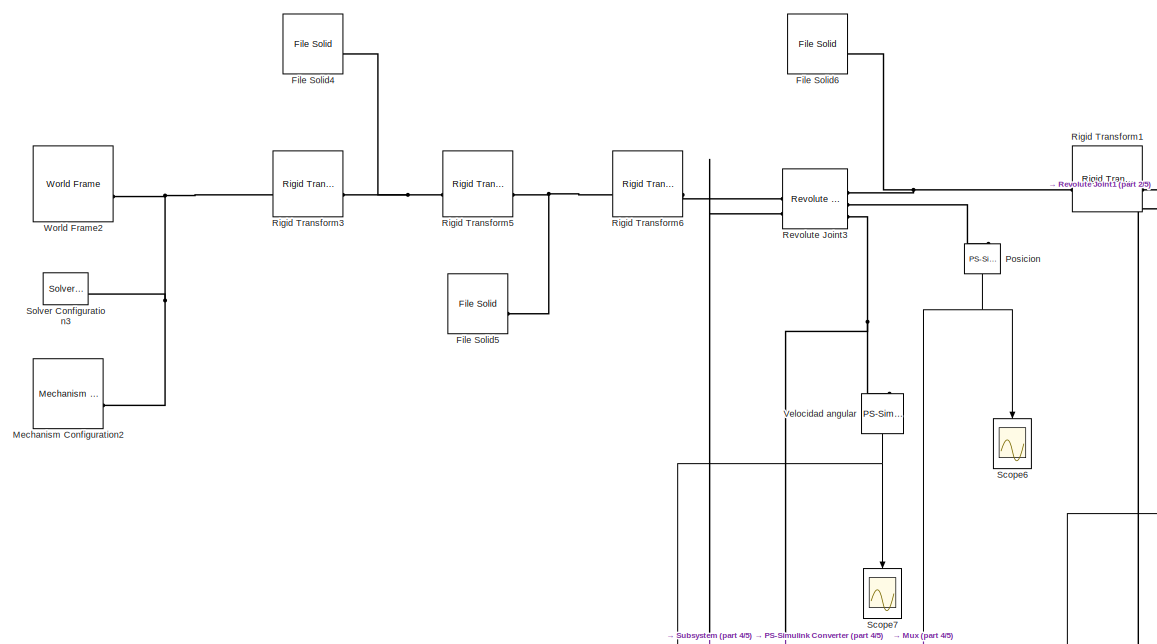
[diagram: Subsystem2 - part 1/5, top center region]
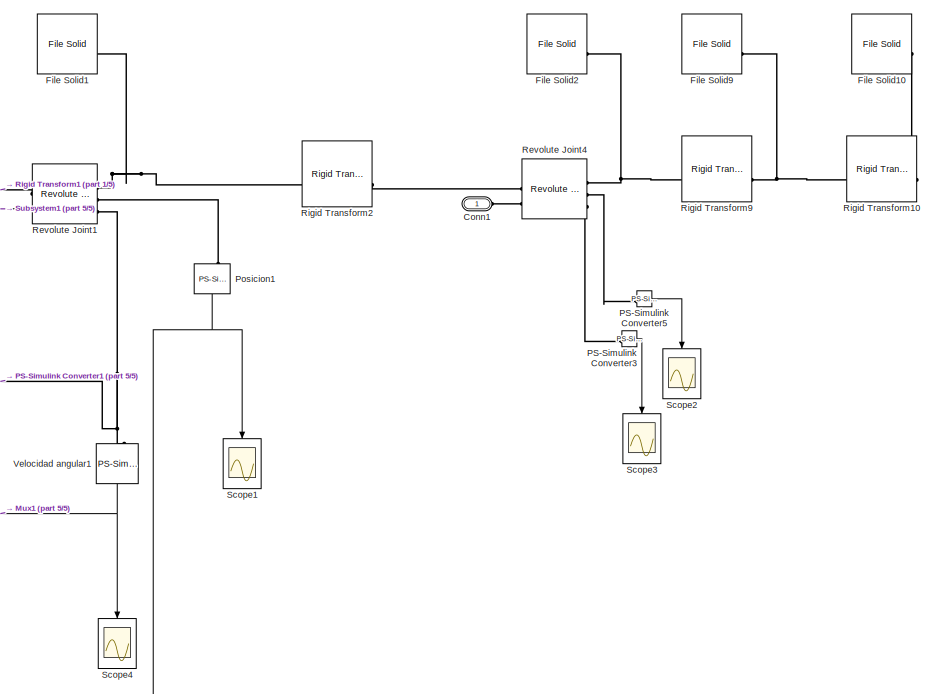
[diagram: Subsystem2 - part 2/5, top right region]
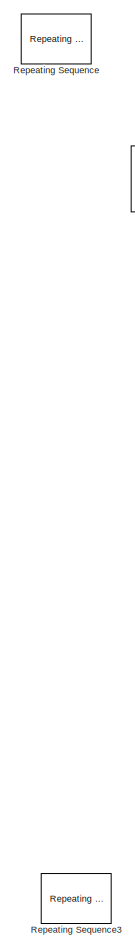
[diagram: Subsystem2 - part 3/5, middle left region]
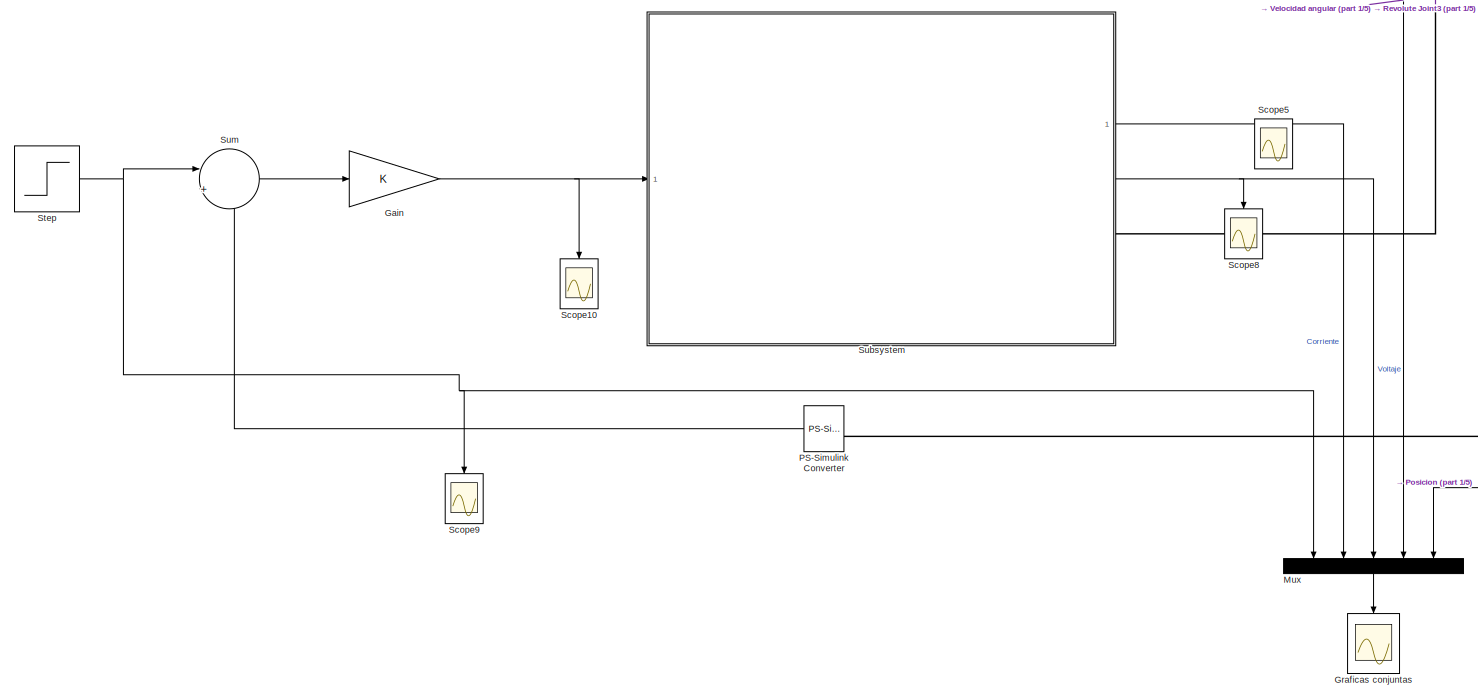
[diagram: Subsystem2 - part 4/5, middle left region]
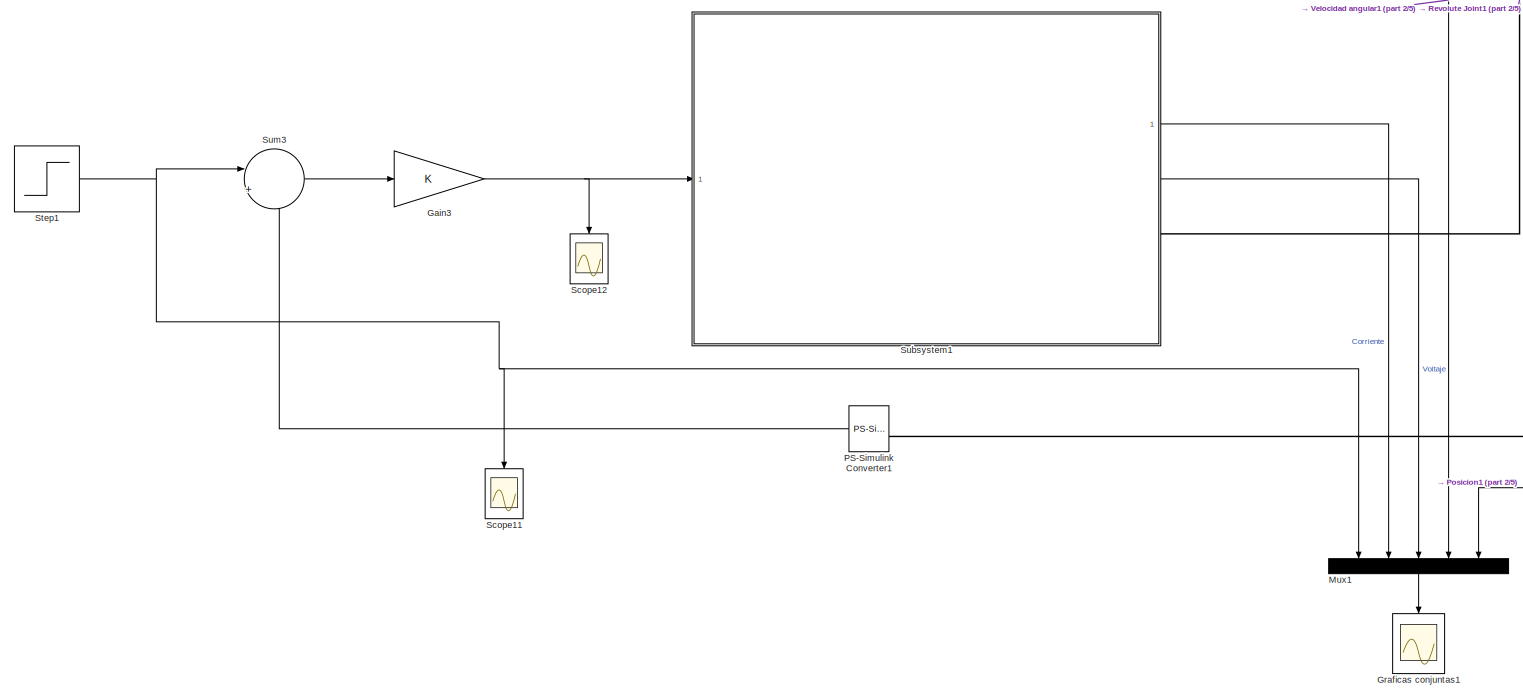
[diagram: Subsystem2 - part 5/5, bottom center region]
BLOCK [SubSystem] Subsystem2
  Commented = on
BLOCK [PMIOPort] Subsystem2/Conn1
  Side = Left
BLOCK [Reference] Subsystem2/File Solid1  REF=sm_lib/Body Elements/File Solid
  SourceBlock = sm_lib/Body Elements/File Solid
  SourceType = File Solid
BLOCK [Reference] Subsystem2/File Solid10  REF=sm_lib/Body Elements/File Solid
  SourceBlock = sm_lib/Body Elements/File Solid
  SourceType = File Solid
BLOCK [Reference] Subsystem2/File Solid2  REF=sm_lib/Body Elements/File Solid
  SourceBlock = sm_lib/Body Elements/File Solid
  SourceType = File Solid
BLOCK [Reference] Subsystem2/File Solid4  REF=sm_lib/Body Elements/File Solid
  SourceBlock = sm_lib/Body Elements/File Solid
  SourceType = File Solid
BLOCK [Reference] Subsystem2/File Solid5  REF=sm_lib/Body Elements/File Solid
  SourceBlock = sm_lib/Body Elements/File Solid
  SourceType = File Solid
BLOCK [Reference] Subsystem2/File Solid6  REF=sm_lib/Body Elements/File Solid
  SourceBlock = sm_lib/Body Elements/File Solid
  SourceType = File Solid
BLOCK [Reference] Subsystem2/File Solid9  REF=sm_lib/Body Elements/File Solid
  SourceBlock = sm_lib/Body Elements/File Solid
  SourceType = File Solid
BLOCK [Gain] Subsystem2/Gain
BLOCK [Gain] Subsystem2/Gain3
BLOCK [Scope] Subsystem2/Graficas conjuntas
  Floating = off
  NameLocation = left
  NumInputPorts = 1
  ScopeSpecificationString = Simulink.scopes.TimeScopeBlockCfg('CurrentConfiguration', extmgr.ConfigurationSet(extmgr.Configuration('Core','General UI',true),extmgr.Configuration('Core','Source UI',true),extmgr.Configuration('Sources','WiredSimulink',true,'DataLoggingVariableName','ScopeData7'),extmgr.Configuration('Visuals','Time Domain',true,'SerializedDisplays',{struct('MinYLimReal','-1.10294','MaxYLimReal','9.92647','YLab...<+1692ch>
BLOCK [Scope] Subsystem2/Graficas conjuntas1
  Floating = off
  NameLocation = left
  NumInputPorts = 1
  ScopeSpecificationString = Simulink.scopes.TimeScopeBlockCfg('CurrentConfiguration', extmgr.ConfigurationSet(extmgr.Configuration('Core','General UI',true),extmgr.Configuration('Core','Source UI',true),extmgr.Configuration('Sources','WiredSimulink',true,'DataLoggingVariableName','ScopeData1'),extmgr.Configuration('Visuals','Time Domain',true,'SerializedDisplays',{struct('MinYLimReal','-0.37355','MaxYLimReal','2.36074','YLab...<+1695ch>
BLOCK [Reference] Subsystem2/Mechanism Configuration2  REF=sm_lib/Utilities/Mechanism
Configuration
  SourceBlock = sm_lib/Utilities/Mechanism\nConfiguration
  SourceType = Mechanism\nConfiguration
BLOCK [Mux] Subsystem2/Mux
  DisplayOption = bar
  Inputs = 5
  NameLocation = left
BLOCK [Mux] Subsystem2/Mux1
  DisplayOption = bar
  Inputs = 5
  NameLocation = left
BLOCK [Reference] Subsystem2/PS-Simulink Converter  REF=nesl_utility/PS-Simulink
Converter
  NameLocation = top
  SourceBlock = nesl_utility/PS-Simulink\nConverter
  SourceType = PS-Simulink\nConverter
BLOCK [Reference] Subsystem2/PS-Simulink Converter1  REF=nesl_utility/PS-Simulink
Converter
  NameLocation = top
  SourceBlock = nesl_utility/PS-Simulink\nConverter
  SourceType = PS-Simulink\nConverter
BLOCK [Reference] Subsystem2/PS-Simulink Converter3  REF=nesl_utility/PS-Simulink
Converter
  SourceBlock = nesl_utility/PS-Simulink\nConverter
  SourceType = PS-Simulink\nConverter
BLOCK [Reference] Subsystem2/PS-Simulink Converter5  REF=nesl_utility/PS-Simulink
Converter
  SourceBlock = nesl_utility/PS-Simulink\nConverter
  SourceType = PS-Simulink\nConverter
BLOCK [Reference] Subsystem2/Posicion  REF=nesl_utility/PS-Simulink
Converter
  NameLocation = left
  SourceBlock = nesl_utility/PS-Simulink\nConverter
  SourceType = PS-Simulink\nConverter
BLOCK [Reference] Subsystem2/Posicion1  REF=nesl_utility/PS-Simulink
Converter
  NameLocation = left
  SourceBlock = nesl_utility/PS-Simulink\nConverter
  SourceType = PS-Simulink\nConverter
BLOCK [Reference] Subsystem2/Repeating Sequence  REF=simulink/Sources/Repeating
Sequence
  Commented = on
  SourceBlock = simulink/Sources/Repeating\nSequence
  SourceType = Repeating table
BLOCK [Reference] Subsystem2/Repeating Sequence3  REF=simulink/Sources/Repeating
Sequence
  Commented = on
  SourceBlock = simulink/Sources/Repeating\nSequence
  SourceType = Repeating table
BLOCK [Reference] Subsystem2/Revolute Joint1  REF=sm_lib/Joints/Revolute Joint
  SourceBlock = sm_lib/Joints/Revolute Joint
  SourceType = Revolute Joint
BLOCK [Reference] Subsystem2/Revolute Joint3  REF=sm_lib/Joints/Revolute Joint
  SourceBlock = sm_lib/Joints/Revolute Joint
  SourceType = Revolute Joint
BLOCK [Reference] Subsystem2/Revolute Joint4  REF=sm_lib/Joints/Revolute Joint
  SourceBlock = sm_lib/Joints/Revolute Joint
  SourceType = Revolute Joint
BLOCK [Reference] Subsystem2/Rigid Transform1  REF=sm_lib/Frames and
Transforms/Rigid
Transform
  SourceBlock = sm_lib/Frames and\nTransforms/Rigid\nTransform
  SourceType = Rigid\nTransform
BLOCK [Reference] Subsystem2/Rigid Transform10  REF=sm_lib/Frames and
Transforms/Rigid
Transform
  SourceBlock = sm_lib/Frames and\nTransforms/Rigid\nTransform
  SourceType = Rigid\nTransform
BLOCK [Reference] Subsystem2/Rigid Transform2  REF=sm_lib/Frames and
Transforms/Rigid
Transform
  SourceBlock = sm_lib/Frames and\nTransforms/Rigid\nTransform
  SourceType = Rigid\nTransform
BLOCK [Reference] Subsystem2/Rigid Transform3  REF=sm_lib/Frames and
Transforms/Rigid
Transform
  SourceBlock = sm_lib/Frames and\nTransforms/Rigid\nTransform
  SourceType = Rigid\nTransform
BLOCK [Reference] Subsystem2/Rigid Transform5  REF=sm_lib/Frames and
Transforms/Rigid
Transform
  SourceBlock = sm_lib/Frames and\nTransforms/Rigid\nTransform
  SourceType = Rigid\nTransform
BLOCK [Reference] Subsystem2/Rigid Transform6  REF=sm_lib/Frames and
Transforms/Rigid
Transform
  SourceBlock = sm_lib/Frames and\nTransforms/Rigid\nTransform
  SourceType = Rigid\nTransform
BLOCK [Reference] Subsystem2/Rigid Transform9  REF=sm_lib/Frames and
Transforms/Rigid
Transform
  SourceBlock = sm_lib/Frames and\nTransforms/Rigid\nTransform
  SourceType = Rigid\nTransform
BLOCK [Scope] Subsystem2/Scope1
  Floating = off
  NameLocation = left
  NumInputPorts = 1
  ScopeSpecificationString = Simulink.scopes.TimeScopeBlockCfg('CurrentConfiguration', extmgr.ConfigurationSet(extmgr.Configuration('Core','General UI',true),extmgr.Configuration('Core','Source UI',true),extmgr.Configuration('Sources','WiredSimulink',true,'DataLoggingVariableName','ScopeData2'),extmgr.Configuration('Visuals','Time Domain',true,'SerializedDisplays',{struct('MinYLimReal','-58.02613','MaxYLimReal','8.41765','YLa...<+1629ch>
BLOCK [Scope] Subsystem2/Scope10
  Floating = off
  NameLocation = left
  NumInputPorts = 1
  ScopeSpecificationString = Simulink.scopes.TimeScopeBlockCfg('CurrentConfiguration', extmgr.ConfigurationSet(extmgr.Configuration('Core','General UI',true),extmgr.Configuration('Core','Source UI',true),extmgr.Configuration('Sources','WiredSimulink',true,'DataLoggingVariableName','ScopeData4'),extmgr.Configuration('Visuals','Time Domain',true,'SerializedDisplays',{struct('MinYLimReal','1.39988','MaxYLimReal','3.17779','YLabe...<+1623ch>
BLOCK [Scope] Subsystem2/Scope11
  Floating = off
  NameLocation = left
  NumInputPorts = 1
  ScopeSpecificationString = Simulink.scopes.TimeScopeBlockCfg('CurrentConfiguration', extmgr.ConfigurationSet(extmgr.Configuration('Core','General UI',true),extmgr.Configuration('Core','Source UI',true),extmgr.Configuration('Sources','WiredSimulink',true,'DataLoggingVariableName','ScopeData1'),extmgr.Configuration('Visuals','Time Domain',true,'SerializedDisplays',{struct('MinYLimReal','1.00000','MaxYLimReal','3.00000','YLabe...<+1637ch>
BLOCK [Scope] Subsystem2/Scope12
  Floating = off
  NameLocation = left
  NumInputPorts = 1
  ScopeSpecificationString = Simulink.scopes.TimeScopeBlockCfg('CurrentConfiguration', extmgr.ConfigurationSet(extmgr.Configuration('Core','General UI',true),extmgr.Configuration('Core','Source UI',true),extmgr.Configuration('Sources','WiredSimulink',true,'DataLoggingVariableName','ScopeData2'),extmgr.Configuration('Visuals','Time Domain',true,'SerializedDisplays',{struct('MinYLimReal','-4.66267','MaxYLimReal','5.69225','YLab...<+1625ch>
BLOCK [Scope] Subsystem2/Scope2
  Floating = off
  NameLocation = left
  NumInputPorts = 1
  ScopeSpecificationString = Simulink.scopes.TimeScopeBlockCfg('CurrentConfiguration', extmgr.ConfigurationSet(extmgr.Configuration('Core','General UI',true),extmgr.Configuration('Core','Source UI',true),extmgr.Configuration('Sources','WiredSimulink',true,'DataLoggingVariableName','ScopeData2'),extmgr.Configuration('Visuals','Time Domain',true,'SerializedDisplays',{struct('MinYLimReal','-2.36281','MaxYLimReal','2.10883','YLab...<+1630ch>
BLOCK [Scope] Subsystem2/Scope3
  Floating = off
  NameLocation = left
  NumInputPorts = 1
  ScopeSpecificationString = Simulink.scopes.TimeScopeBlockCfg('CurrentConfiguration', extmgr.ConfigurationSet(extmgr.Configuration('Core','General UI',true),extmgr.Configuration('Core','Source UI',true),extmgr.Configuration('Sources','WiredSimulink',true,'DataLoggingVariableName','ScopeData3'),extmgr.Configuration('Visuals','Time Domain',true,'SerializedDisplays',{struct('MinYLimReal','-2.80651','MaxYLimReal','3.28199','YLab...<+1597ch>
BLOCK [Scope] Subsystem2/Scope4
  Floating = off
  NameLocation = left
  NumInputPorts = 1
  ScopeSpecificationString = Simulink.scopes.TimeScopeBlockCfg('CurrentConfiguration', extmgr.ConfigurationSet(extmgr.Configuration('Core','General UI',true),extmgr.Configuration('Core','Source UI',true),extmgr.Configuration('Sources','WiredSimulink',true,'DataLoggingVariableName','ScopeData6'),extmgr.Configuration('Visuals','Time Domain',true,'SerializedDisplays',{struct('MinYLimReal','-6.08474','MaxYLimReal','0.75735','YLab...<+1625ch>
BLOCK [Scope] Subsystem2/Scope5
  Floating = off
  NameLocation = left
  NumInputPorts = 1
  ScopeSpecificationString = Simulink.scopes.TimeScopeBlockCfg('CurrentConfiguration', extmgr.ConfigurationSet(extmgr.Configuration('Core','General UI',true),extmgr.Configuration('Core','Source UI',true),extmgr.Configuration('Sources','WiredSimulink',true,'DataLoggingVariableName','ScopeData1'),extmgr.Configuration('Visuals','Time Domain',true,'SerializedDisplays',{struct('MinYLimReal','-1.00000','MaxYLimReal','1.00000','YLab...<+1628ch>
BLOCK [Scope] Subsystem2/Scope6
  Floating = off
  NameLocation = left
  NumInputPorts = 1
  ScopeSpecificationString = Simulink.scopes.TimeScopeBlockCfg('CurrentConfiguration', extmgr.ConfigurationSet(extmgr.Configuration('Core','General UI',true),extmgr.Configuration('Core','Source UI',true),extmgr.Configuration('Sources','WiredSimulink',true,'DataLoggingVariableName','ScopeData5'),extmgr.Configuration('Visuals','Time Domain',true,'SerializedDisplays',{struct('MinYLimReal','0.78652','MaxYLimReal','3.3933','YLabel...<+1619ch>
BLOCK [Scope] Subsystem2/Scope7
  Floating = off
  NameLocation = left
  NumInputPorts = 1
  ScopeSpecificationString = Simulink.scopes.TimeScopeBlockCfg('CurrentConfiguration', extmgr.ConfigurationSet(extmgr.Configuration('Core','General UI',true),extmgr.Configuration('Core','Source UI',true),extmgr.Configuration('Sources','WiredSimulink',true,'DataLoggingVariableName','ScopeData6'),extmgr.Configuration('Visuals','Time Domain',true,'SerializedDisplays',{struct('MinYLimReal','-0.17779','MaxYLimReal','1.60014','YLab...<+1625ch>
BLOCK [Scope] Subsystem2/Scope8
  Floating = off
  NameLocation = left
  NumInputPorts = 1
  ScopeSpecificationString = Simulink.scopes.TimeScopeBlockCfg('CurrentConfiguration', extmgr.ConfigurationSet(extmgr.Configuration('Core','General UI',true),extmgr.Configuration('Core','Source UI',true),extmgr.Configuration('Sources','WiredSimulink',true,'DataLoggingVariableName','ScopeData2'),extmgr.Configuration('Visuals','Time Domain',true,'SerializedDisplays',{struct('MinYLimReal','-1.10294','MaxYLimReal','9.92647','YLab...<+1614ch>
BLOCK [Scope] Subsystem2/Scope9
  Floating = off
  NameLocation = left
  NumInputPorts = 1
  ScopeSpecificationString = Simulink.scopes.TimeScopeBlockCfg('CurrentConfiguration', extmgr.ConfigurationSet(extmgr.Configuration('Core','General UI',true),extmgr.Configuration('Core','Source UI',true),extmgr.Configuration('Sources','WiredSimulink',true,'DataLoggingVariableName','ScopeData3'),extmgr.Configuration('Visuals','Time Domain',true,'SerializedDisplays',{struct('MinYLimReal','2.00000','MaxYLimReal','4.00000','YLabe...<+1637ch>
BLOCK [Reference] Subsystem2/Solver Configuration3  REF=nesl_utility/Solver
Configuration
  SourceBlock = nesl_utility/Solver\nConfiguration
  SourceType = Solver\nConfiguration
BLOCK [Step] Subsystem2/Step
  After = 3
  SampleTime = 5
  Time = 0
BLOCK [Step] Subsystem2/Step1
  After = 2
  SampleTime = 5
  Time = 0
BLOCK [SubSystem] Subsystem2/Subsystem
BLOCK [SubSystem] Subsystem2/Subsystem/Buck
BLOCK [PMIOPort] Subsystem2/Subsystem/Buck/Buck ( + )
  NameLocation = top
  Side = Left
BLOCK [PMIOPort] Subsystem2/Subsystem/Buck/Buck ( - )
  NameLocation = top
  Port = 3
  Side = Left
BLOCK [Reference] Subsystem2/Subsystem/Buck/Buck Converter  REF=ee_lib/Semiconductors &
Converters/Converters/Buck Converter
  SourceBlock = ee_lib/Semiconductors &\nConverters/Converters/Buck Converter
  SourceType = Buck Converter
BLOCK [Outport] Subsystem2/Subsystem/Buck/Corriente
  NameLocation = top
BLOCK [Reference] Subsystem2/Subsystem/Buck/Current Sensor  REF=fl_lib/Electrical/Electrical Sensors/Current Sensor
  Commented = on
  SourceBlock = fl_lib/Electrical/Electrical Sensors/Current Sensor
  SourceType = Current Sensor
BLOCK [Reference] Subsystem2/Subsystem/Buck/DC Voltage Source  REF=fl_lib/Electrical/Electrical Sources/DC Voltage Source
  NameLocation = right
  SourceBlock = fl_lib/Electrical/Electrical Sources/DC Voltage Source
  SourceType = DC Voltage Source
BLOCK [Outport] Subsystem2/Subsystem/Buck/Medida Voltaje
  Port = 2
BLOCK [Reference] Subsystem2/Subsystem/Buck/PS-Simulink Converter4  REF=nesl_utility/PS-Simulink
Converter
  SourceBlock = nesl_utility/PS-Simulink\nConverter
  SourceType = PS-Simulink\nConverter
BLOCK [Reference] Subsystem2/Subsystem/Buck/PS-Simulink Converter8  REF=nesl_utility/PS-Simulink
Converter
  NameLocation = left
  SourceBlock = nesl_utility/PS-Simulink\nConverter
  SourceType = PS-Simulink\nConverter
BLOCK [Inport] Subsystem2/Subsystem/Buck/Ref lazo cerrado
BLOCK [PMIOPort] Subsystem2/Subsystem/Buck/Referencia de lazo cerrado
  Port = 4
  Side = Right
BLOCK [Reference] Subsystem2/Subsystem/Buck/Simulink-PS Converter  REF=nesl_utility/Simulink-PS
Converter
  SourceBlock = nesl_utility/Simulink-PS\nConverter
  SourceType = Simulink-PS\nConverter
BLOCK [Reference] Subsystem2/Subsystem/Buck/Simulink-PS Converter1  REF=nesl_utility/Simulink-PS
Converter
  SourceBlock = nesl_utility/Simulink-PS\nConverter
  SourceType = Simulink-PS\nConverter
BLOCK [Reference] Subsystem2/Subsystem/Buck/Voltage Sensor  REF=fl_lib/Electrical/Electrical Sensors/Voltage Sensor
  NameLocation = right
  SourceBlock = fl_lib/Electrical/Electrical Sensors/Voltage Sensor
  SourceType = Voltage Sensor
BLOCK [PMIOPort] Subsystem2/Subsystem/Buck/Voltaje de salida
  Port = 2
  Side = Right
BLOCK [Outport] Subsystem2/Subsystem/Corriente
BLOCK [Outport] Subsystem2/Subsystem/Medida Voltaje
  Port = 2
BLOCK [SubSystem] Subsystem2/Subsystem/Motor DC
BLOCK [Reference] Subsystem2/Subsystem/Motor DC/Electrical Reference1  REF=fl_lib/Electrical/Electrical Elements/Electrical Reference
  NameLocation = right
  SourceBlock = fl_lib/Electrical/Electrical Elements/Electrical Reference
  SourceType = Electrical Reference
BLOCK [Reference] Subsystem2/Subsystem/Motor DC/Ideal Torque Sensor1  REF=fl_lib/Mechanical/Mechanical Sensors/Ideal Torque Sensor
  NameLocation = right
  SourceBlock = fl_lib/Mechanical/Mechanical Sensors/Ideal Torque Sensor
  SourceType = Ideal Torque Sensor
BLOCK [Reference] Subsystem2/Subsystem/Motor DC/Inductor1  REF=fl_lib/Electrical/Electrical Elements/Inductor
  SourceBlock = fl_lib/Electrical/Electrical Elements/Inductor
  SourceType = Inductor
BLOCK [Reference] Subsystem2/Subsystem/Motor DC/Inertia1  REF=fl_lib/Mechanical/Rotational Elements/Inertia
  NameLocation = left
  SourceBlock = fl_lib/Mechanical/Rotational Elements/Inertia
  SourceType = Inertia
BLOCK [Reference] Subsystem2/Subsystem/Motor DC/Mechanical Rotational Reference1  REF=fl_lib/Mechanical/Rotational Elements/Mechanical
Rotational Reference
  NameLocation = right
  SourceBlock = fl_lib/Mechanical/Rotational Elements/Mechanical\nRotational Reference
  SourceType = Mechanical\nRotational Reference
BLOCK [Reference] Subsystem2/Subsystem/Motor DC/PS-Simulink Converter8  REF=nesl_utility/PS-Simulink
Converter
  NameLocation = left
  SourceBlock = nesl_utility/PS-Simulink\nConverter
  SourceType = PS-Simulink\nConverter
BLOCK [PMIOPort] Subsystem2/Subsystem/Motor DC/Puente ( + )
  Port = 2
  Side = Left
BLOCK [PMIOPort] Subsystem2/Subsystem/Motor DC/Puente ( - )
  Port = 3
  Side = Left
BLOCK [Reference] Subsystem2/Subsystem/Motor DC/Resistor1  REF=fl_lib/Electrical/Electrical Elements/Resistor
  SourceBlock = fl_lib/Electrical/Electrical Elements/Resistor
  SourceType = Resistor
BLOCK [Reference] Subsystem2/Subsystem/Motor DC/Rotational Damper1  REF=fl_lib/Mechanical/Rotational Elements/Rotational Damper
  SourceBlock = fl_lib/Mechanical/Rotational Elements/Rotational Damper
  SourceType = Rotational Damper
BLOCK [Reference] Subsystem2/Subsystem/Motor DC/Rotational Electromechanical Converter1  REF=fl_lib/Electrical/Electrical Elements/Rotational
Electromechanical
Converter
  NameLocation = left
  SourceBlock = fl_lib/Electrical/Electrical Elements/Rotational\nElectromechanical\nConverter
  SourceType = Rotational\nElectromechanical\nConverter
BLOCK [Scope] Subsystem2/Subsystem/Motor DC/Scope
  Floating = off
  NumInputPorts = 1
  ScopeSpecificationString = Simulink.scopes.TimeScopeBlockCfg('CurrentConfiguration', extmgr.ConfigurationSet(extmgr.Configuration('Core','General UI',true),extmgr.Configuration('Core','Source UI',true),extmgr.Configuration('Sources','WiredSimulink',true,'DataLoggingVariableName','ScopeData1'),extmgr.Configuration('Visuals','Time Domain',true,'SerializedDisplays',{struct('MinYLimReal','-1.00000','MaxYLimReal','1.00000','YLab...<+1495ch>
BLOCK [PMIOPort] Subsystem2/Subsystem/Motor DC/Torque
  NameLocation = top
  Side = Right
BLOCK [Reference] Subsystem2/Subsystem/Motor DC/Voltage Sensor  REF=fl_lib/Electrical/Electrical Sensors/Voltage Sensor
  NameLocation = right
  SourceBlock = fl_lib/Electrical/Electrical Sensors/Voltage Sensor
  SourceType = Voltage Sensor
BLOCK [SubSystem] Subsystem2/Subsystem/Puente H
BLOCK [PMIOPort] Subsystem2/Subsystem/Puente H/Buck ( + )
  NameLocation = top
  Side = Right
BLOCK [PMIOPort] Subsystem2/Subsystem/Puente H/Buck ( - )
  NameLocation = top
  Port = 4
  Side = Right
BLOCK [Reference] Subsystem2/Subsystem/Puente H/Controlled PWM Voltage1  REF=ee_lib/Integrated Circuits/Controlled PWM
Voltage
  Commented = on
  SourceBlock = ee_lib/Integrated Circuits/Controlled PWM\nVoltage
  SourceType = Controlled PWM\nVoltage
BLOCK [Reference] Subsystem2/Subsystem/Puente H/Controlled PWM Voltage2  REF=ee_lib/Integrated Circuits/Controlled PWM
Voltage
  SourceBlock = ee_lib/Integrated Circuits/Controlled PWM\nVoltage
  SourceType = Controlled PWM\nVoltage
BLOCK [Reference] Subsystem2/Subsystem/Puente H/Controlled PWM Voltage3  REF=ee_lib/Integrated Circuits/Controlled PWM
Voltage
  Commented = on
  SourceBlock = ee_lib/Integrated Circuits/Controlled PWM\nVoltage
  SourceType = Controlled PWM\nVoltage
BLOCK [Reference] Subsystem2/Subsystem/Puente H/Controlled PWM Voltage4  REF=ee_lib/Integrated Circuits/Controlled PWM
Voltage
  SourceBlock = ee_lib/Integrated Circuits/Controlled PWM\nVoltage
  SourceType = Controlled PWM\nVoltage
BLOCK [Reference] Subsystem2/Subsystem/Puente H/Electrical Reference2  REF=fl_lib/Electrical/Electrical Elements/Electrical Reference
  NameLocation = right
  SourceBlock = fl_lib/Electrical/Electrical Elements/Electrical Reference
  SourceType = Electrical Reference
BLOCK [Reference] Subsystem2/Subsystem/Puente H/H-Bridge1  REF=ee_lib/Semiconductors &
Converters/Converters/H-Bridge
  SourceBlock = ee_lib/Semiconductors &\nConverters/Converters/H-Bridge
  SourceType = H-Bridge
BLOCK [PMIOPort] Subsystem2/Subsystem/Puente H/Puente ( + )
  Port = 2
  Side = Right
BLOCK [PMIOPort] Subsystem2/Subsystem/Puente H/Puente ( - )
  Port = 5
  Side = Right
BLOCK [PMIOPort] Subsystem2/Subsystem/Puente H/Referencia lazo cerrado
  Port = 6
  Side = Left
BLOCK [Reference] Subsystem2/Subsystem/Puente H/Simulink-PS Converter5  REF=nesl_utility/Simulink-PS
Converter
  Commented = on
  SourceBlock = nesl_utility/Simulink-PS\nConverter
  SourceType = Simulink-PS\nConverter
BLOCK [Reference] Subsystem2/Subsystem/Puente H/Simulink-PS Converter6  REF=nesl_utility/Simulink-PS
Converter
  Commented = on
  SourceBlock = nesl_utility/Simulink-PS\nConverter
  SourceType = Simulink-PS\nConverter
BLOCK [Step] Subsystem2/Subsystem/Puente H/Step8
  After = 0
  Before = 1
  Commented = on
  SampleTime = 0
  Time = 5
BLOCK [Step] Subsystem2/Subsystem/Puente H/Step9
  Commented = on
  SampleTime = 0
  Time = 8
BLOCK [PMIOPort] Subsystem2/Subsystem/Puente H/Voltaje Buck
  Port = 3
  Side = Left
BLOCK [Inport] Subsystem2/Subsystem/Ref lazo cerrado
BLOCK [PMIOPort] Subsystem2/Subsystem/Torque
  NameLocation = top
  Side = Right
BLOCK [SubSystem] Subsystem2/Subsystem1
BLOCK [SubSystem] Subsystem2/Subsystem1/Buck
BLOCK [PMIOPort] Subsystem2/Subsystem1/Buck/Buck ( + )
  NameLocation = top
  Side = Left
BLOCK [PMIOPort] Subsystem2/Subsystem1/Buck/Buck ( - )
  NameLocation = top
  Port = 3
  Side = Left
BLOCK [Reference] Subsystem2/Subsystem1/Buck/Buck Converter  REF=ee_lib/Semiconductors &
Converters/Converters/Buck Converter
  SourceBlock = ee_lib/Semiconductors &\nConverters/Converters/Buck Converter
  SourceType = Buck Converter
BLOCK [Outport] Subsystem2/Subsystem1/Buck/Corriente
  NameLocation = top
BLOCK [Reference] Subsystem2/Subsystem1/Buck/Current Sensor  REF=fl_lib/Electrical/Electrical Sensors/Current Sensor
  SourceBlock = fl_lib/Electrical/Electrical Sensors/Current Sensor
  SourceType = Current Sensor
BLOCK [Reference] Subsystem2/Subsystem1/Buck/DC Voltage Source  REF=fl_lib/Electrical/Electrical Sources/DC Voltage Source
  NameLocation = right
  SourceBlock = fl_lib/Electrical/Electrical Sources/DC Voltage Source
  SourceType = DC Voltage Source
BLOCK [Outport] Subsystem2/Subsystem1/Buck/Medida Voltaje
  Port = 2
BLOCK [Reference] Subsystem2/Subsystem1/Buck/PS-Simulink Converter4  REF=nesl_utility/PS-Simulink
Converter
  SourceBlock = nesl_utility/PS-Simulink\nConverter
  SourceType = PS-Simulink\nConverter
BLOCK [Reference] Subsystem2/Subsystem1/Buck/PS-Simulink Converter8  REF=nesl_utility/PS-Simulink
Converter
  NameLocation = left
  SourceBlock = nesl_utility/PS-Simulink\nConverter
  SourceType = PS-Simulink\nConverter
BLOCK [Inport] Subsystem2/Subsystem1/Buck/Ref lazo cerrado
BLOCK [PMIOPort] Subsystem2/Subsystem1/Buck/Referencia de lazo cerrado
  Port = 4
  Side = Right
BLOCK [Reference] Subsystem2/Subsystem1/Buck/Simulink-PS Converter  REF=nesl_utility/Simulink-PS
Converter
  SourceBlock = nesl_utility/Simulink-PS\nConverter
  SourceType = Simulink-PS\nConverter
BLOCK [Reference] Subsystem2/Subsystem1/Buck/Simulink-PS Converter1  REF=nesl_utility/Simulink-PS
Converter
  SourceBlock = nesl_utility/Simulink-PS\nConverter
  SourceType = Simulink-PS\nConverter
BLOCK [Reference] Subsystem2/Subsystem1/Buck/Voltage Sensor  REF=fl_lib/Electrical/Electrical Sensors/Voltage Sensor
  NameLocation = right
  SourceBlock = fl_lib/Electrical/Electrical Sensors/Voltage Sensor
  SourceType = Voltage Sensor
BLOCK [PMIOPort] Subsystem2/Subsystem1/Buck/Voltaje de salida
  Port = 2
  Side = Right
BLOCK [Outport] Subsystem2/Subsystem1/Corriente
BLOCK [Outport] Subsystem2/Subsystem1/Medida Voltaje
  Port = 2
BLOCK [SubSystem] Subsystem2/Subsystem1/Motor DC
BLOCK [Reference] Subsystem2/Subsystem1/Motor DC/Electrical Reference1  REF=fl_lib/Electrical/Electrical Elements/Electrical Reference
  NameLocation = right
  SourceBlock = fl_lib/Electrical/Electrical Elements/Electrical Reference
  SourceType = Electrical Reference
BLOCK [Reference] Subsystem2/Subsystem1/Motor DC/Ideal Torque Sensor1  REF=fl_lib/Mechanical/Mechanical Sensors/Ideal Torque Sensor
  NameLocation = right
  SourceBlock = fl_lib/Mechanical/Mechanical Sensors/Ideal Torque Sensor
  SourceType = Ideal Torque Sensor
BLOCK [Reference] Subsystem2/Subsystem1/Motor DC/Inductor1  REF=fl_lib/Electrical/Electrical Elements/Inductor
  SourceBlock = fl_lib/Electrical/Electrical Elements/Inductor
  SourceType = Inductor
BLOCK [Reference] Subsystem2/Subsystem1/Motor DC/Inertia1  REF=fl_lib/Mechanical/Rotational Elements/Inertia
  NameLocation = left
  SourceBlock = fl_lib/Mechanical/Rotational Elements/Inertia
  SourceType = Inertia
BLOCK [Reference] Subsystem2/Subsystem1/Motor DC/Mechanical Rotational Reference1  REF=fl_lib/Mechanical/Rotational Elements/Mechanical
Rotational Reference
  NameLocation = right
  SourceBlock = fl_lib/Mechanical/Rotational Elements/Mechanical\nRotational Reference
  SourceType = Mechanical\nRotational Reference
BLOCK [PMIOPort] Subsystem2/Subsystem1/Motor DC/Puente ( + )
  Port = 2
  Side = Left
BLOCK [PMIOPort] Subsystem2/Subsystem1/Motor DC/Puente ( - )
  Port = 3
  Side = Left
BLOCK [Reference] Subsystem2/Subsystem1/Motor DC/Resistor1  REF=fl_lib/Electrical/Electrical Elements/Resistor
  SourceBlock = fl_lib/Electrical/Electrical Elements/Resistor
  SourceType = Resistor
BLOCK [Reference] Subsystem2/Subsystem1/Motor DC/Rotational Damper1  REF=fl_lib/Mechanical/Rotational Elements/Rotational Damper
  SourceBlock = fl_lib/Mechanical/Rotational Elements/Rotational Damper
  SourceType = Rotational Damper
BLOCK [Reference] Subsystem2/Subsystem1/Motor DC/Rotational Electromechanical Converter1  REF=fl_lib/Electrical/Electrical Elements/Rotational
Electromechanical
Converter
  NameLocation = left
  SourceBlock = fl_lib/Electrical/Electrical Elements/Rotational\nElectromechanical\nConverter
  SourceType = Rotational\nElectromechanical\nConverter
BLOCK [PMIOPort] Subsystem2/Subsystem1/Motor DC/Torque
  NameLocation = top
  Side = Right
BLOCK [SubSystem] Subsystem2/Subsystem1/Puente H
BLOCK [PMIOPort] Subsystem2/Subsystem1/Puente H/Buck ( + )
  NameLocation = top
  Side = Right
BLOCK [PMIOPort] Subsystem2/Subsystem1/Puente H/Buck ( - )
  NameLocation = top
  Port = 4
  Side = Right
BLOCK [Reference] Subsystem2/Subsystem1/Puente H/Controlled PWM Voltage1  REF=ee_lib/Integrated Circuits/Controlled PWM
Voltage
  Commented = on
  SourceBlock = ee_lib/Integrated Circuits/Controlled PWM\nVoltage
  SourceType = Controlled PWM\nVoltage
BLOCK [Reference] Subsystem2/Subsystem1/Puente H/Controlled PWM Voltage2  REF=ee_lib/Integrated Circuits/Controlled PWM
Voltage
  SourceBlock = ee_lib/Integrated Circuits/Controlled PWM\nVoltage
  SourceType = Controlled PWM\nVoltage
BLOCK [Reference] Subsystem2/Subsystem1/Puente H/Controlled PWM Voltage3  REF=ee_lib/Integrated Circuits/Controlled PWM
Voltage
  Commented = on
  SourceBlock = ee_lib/Integrated Circuits/Controlled PWM\nVoltage
  SourceType = Controlled PWM\nVoltage
BLOCK [Reference] Subsystem2/Subsystem1/Puente H/Controlled PWM Voltage4  REF=ee_lib/Integrated Circuits/Controlled PWM
Voltage
  SourceBlock = ee_lib/Integrated Circuits/Controlled PWM\nVoltage
  SourceType = Controlled PWM\nVoltage
BLOCK [Reference] Subsystem2/Subsystem1/Puente H/Electrical Reference2  REF=fl_lib/Electrical/Electrical Elements/Electrical Reference
  NameLocation = right
  SourceBlock = fl_lib/Electrical/Electrical Elements/Electrical Reference
  SourceType = Electrical Reference
BLOCK [Reference] Subsystem2/Subsystem1/Puente H/H-Bridge1  REF=ee_lib/Semiconductors &
Converters/Converters/H-Bridge
  SourceBlock = ee_lib/Semiconductors &\nConverters/Converters/H-Bridge
  SourceType = H-Bridge
BLOCK [PMIOPort] Subsystem2/Subsystem1/Puente H/Puente ( + )
  Port = 2
  Side = Right
BLOCK [PMIOPort] Subsystem2/Subsystem1/Puente H/Puente ( - )
  Port = 5
  Side = Right
BLOCK [PMIOPort] Subsystem2/Subsystem1/Puente H/Referencia lazo cerrado
  Port = 6
  Side = Left
BLOCK [Reference] Subsystem2/Subsystem1/Puente H/Simulink-PS Converter5  REF=nesl_utility/Simulink-PS
Converter
  Commented = on
  SourceBlock = nesl_utility/Simulink-PS\nConverter
  SourceType = Simulink-PS\nConverter
BLOCK [Reference] Subsystem2/Subsystem1/Puente H/Simulink-PS Converter6  REF=nesl_utility/Simulink-PS
Converter
  Commented = on
  SourceBlock = nesl_utility/Simulink-PS\nConverter
  SourceType = Simulink-PS\nConverter
BLOCK [Step] Subsystem2/Subsystem1/Puente H/Step8
  After = 0
  Before = 1
  Commented = on
  SampleTime = 0
  Time = 5
BLOCK [Step] Subsystem2/Subsystem1/Puente H/Step9
  Commented = on
  SampleTime = 0
  Time = 8
BLOCK [PMIOPort] Subsystem2/Subsystem1/Puente H/Voltaje Buck
  Port = 3
  Side = Left
BLOCK [Inport] Subsystem2/Subsystem1/Ref lazo cerrado
BLOCK [PMIOPort] Subsystem2/Subsystem1/Torque
  NameLocation = top
  Side = Right
BLOCK [Sum] Subsystem2/Sum
  Inputs = |+-
BLOCK [Sum] Subsystem2/Sum3
  Inputs = |+-
BLOCK [Reference] Subsystem2/Velocidad angular  REF=nesl_utility/PS-Simulink
Converter
  NameLocation = left
  SourceBlock = nesl_utility/PS-Simulink\nConverter
  SourceType = PS-Simulink\nConverter
BLOCK [Reference] Subsystem2/Velocidad angular1  REF=nesl_utility/PS-Simulink
Converter
  NameLocation = left
  SourceBlock = nesl_utility/PS-Simulink\nConverter
  SourceType = PS-Simulink\nConverter
BLOCK [Reference] Subsystem2/World Frame2  REF=sm_lib/Frames and
Transforms/World Frame
  SourceBlock = sm_lib/Frames and\nTransforms/World Frame
  SourceType = World Frame
BLOCK [Sum] Sum1
  Inputs = |+-
BLOCK [Sum] Sum2
  Inputs = |+-
BLOCK [Sum] Sum4
  Inputs = |+-
BLOCK [Reference] Velocidad angular  REF=nesl_utility/PS-Simulink
Converter
  NameLocation = left
  SourceBlock = nesl_utility/PS-Simulink\nConverter
  SourceType = PS-Simulink\nConverter
BLOCK [Reference] Velocidad angular1  REF=nesl_utility/PS-Simulink
Converter
  NameLocation = left
  SourceBlock = nesl_utility/PS-Simulink\nConverter
  SourceType = PS-Simulink\nConverter
BLOCK [Reference] Velocidad angular2  REF=nesl_utility/PS-Simulink
Converter
  NameLocation = left
  SourceBlock = nesl_utility/PS-Simulink\nConverter
  SourceType = PS-Simulink\nConverter
BLOCK [Reference] World Frame2  REF=sm_lib/Frames and
Transforms/World Frame
  SourceBlock = sm_lib/Frames and\nTransforms/World Frame
  SourceType = World Frame
LINE Gain1:1 -> Simulink-PS Converter1:1
LINE Gain2:1 -> Simulink-PS Converter2:1
LINE Gain4:1 -> Simulink-PS Converter5:1
NET Motor controlado/Buck/Corriente:1 -> Motor controlado/Buck/Mux5:1, Motor controlado/Buck/Scope16:1
LINE Motor controlado/Buck/Mux5:1 -> Motor controlado/Buck/Scope17:1
LINE Motor controlado/Buck/Step5:1 -> Motor controlado/Buck/Simulink-PS Converter:1
LINE Motor controlado/Buck/V entrada:1 -> Motor controlado/Buck/Scope18:1
NET Motor controlado/Buck/Voltaje:1 -> Motor controlado/Buck/Mux5:2, Motor controlado/Buck/Scope13:1
LINE Motor controlado/Motor DC/PS-Simulink Converter2:1 -> Motor controlado/Motor DC/Scope10:1
LINE Motor controlado/Motor DC/PS-Simulink Converter3:1 -> Motor controlado/Motor DC/Scope11:1
LINE Motor controlado/Puente H/PS-Simulink Converter3:1 -> Motor controlado/Puente H/Scope2:1
LINE Motor controlado/Puente H/Step4:1 -> Motor controlado/Puente H/Simulink-PS Converter4:1
LINE Motor controlado1/Buck/Mux5:1 -> Motor controlado1/Buck/Scope17:1
NET Motor controlado1/Buck/PS-Simulink Converter6:1 -> Motor controlado1/Buck/Mux5:2, Motor controlado1/Buck/Scope13:1
NET Motor controlado1/Buck/PS-Simulink Converter7:1 -> Motor controlado1/Buck/Mux5:1, Motor controlado1/Buck/Scope16:1
LINE Motor controlado1/Buck/Step5:1 -> Motor controlado1/Buck/Simulink-PS Converter:1
LINE Motor controlado1/Buck/V entrada:1 -> Motor controlado1/Buck/Scope18:1
LINE Motor controlado1/Motor DC/PS-Simulink Converter2:1 -> Motor controlado1/Motor DC/Scope10:1
LINE Motor controlado1/Motor DC/PS-Simulink Converter3:1 -> Motor controlado1/Motor DC/Scope11:1
LINE Motor controlado1/Puente H/PS-Simulink Converter3:1 -> Motor controlado1/Puente H/Scope2:1
LINE Motor controlado1/Puente H/Step4:1 -> Motor controlado1/Puente H/Simulink-PS Converter4:1
LINE Motor controlado2/Buck/Mux5:1 -> Motor controlado2/Buck/Scope17:1
NET Motor controlado2/Buck/PS-Simulink Converter6:1 -> Motor controlado2/Buck/Mux5:2, Motor controlado2/Buck/Scope13:1
NET Motor controlado2/Buck/PS-Simulink Converter7:1 -> Motor controlado2/Buck/Mux5:1, Motor controlado2/Buck/Scope16:1
LINE Motor controlado2/Buck/Step5:1 -> Motor controlado2/Buck/Simulink-PS Converter:1
LINE Motor controlado2/Buck/V entrada:1 -> Motor controlado2/Buck/Scope18:1
LINE Motor controlado2/Motor DC/PS-Simulink Converter2:1 -> Motor controlado2/Motor DC/Scope10:1
LINE Motor controlado2/Motor DC/PS-Simulink Converter3:1 -> Motor controlado2/Motor DC/Scope11:1
LINE Motor controlado2/Puente H/PS-Simulink Converter3:1 -> Motor controlado2/Puente H/Scope2:1
LINE Motor controlado2/Puente H/Step4:1 -> Motor controlado2/Puente H/Simulink-PS Converter4:1
LINE Mux1:1 -> Scope1:1
LINE Mux2:1 -> Scope4:1
LINE Mux4:1 -> Scope12:1
NET PS-Simulink Converter1:1 -> Mux1:2, Sum1:2
LINE PS-Simulink Converter2:1 -> Scope14:1
LINE PS-Simulink Converter3:1 -> Scope3:1
NET PS-Simulink Converter4:1 -> Mux2:2, Sum2:2
LINE PS-Simulink Converter5:1 -> Scope5:1
NET PS-Simulink Converter8:1 -> Mux4:2, Sum4:2
NET Step1:1 -> Mux1:1, Sum1:1
NET Step2:1 -> Mux2:1, Sum2:1
NET Step6:1 -> Mux4:1, Sum4:1
NET Subsystem2/Gain3:1 -> Subsystem2/Scope12:1, Subsystem2/Subsystem1:1
NET Subsystem2/Gain:1 -> Subsystem2/Scope10:1, Subsystem2/Subsystem:1
LINE Subsystem2/Mux1:1 -> Subsystem2/Graficas conjuntas1:1
LINE Subsystem2/Mux:1 -> Subsystem2/Graficas conjuntas:1
LINE Subsystem2/PS-Simulink Converter1:1 -> Subsystem2/Sum3:2
LINE Subsystem2/PS-Simulink Converter3:1 -> Subsystem2/Scope3:1
LINE Subsystem2/PS-Simulink Converter5:1 -> Subsystem2/Scope2:1
LINE Subsystem2/PS-Simulink Converter:1 -> Subsystem2/Sum:2
NET Subsystem2/Posicion1:1 -> Subsystem2/Mux1:5, Subsystem2/Scope1:1
NET Subsystem2/Posicion:1 -> Subsystem2/Mux:5, Subsystem2/Scope6:1
NET Subsystem2/Step1:1 -> Subsystem2/Mux1:1, Subsystem2/Scope11:1, Subsystem2/Sum3:1
NET Subsystem2/Step:1 -> Subsystem2/Mux:1, Subsystem2/Scope9:1, Subsystem2/Sum:1
LINE Subsystem2/Subsystem/Buck/PS-Simulink Converter4:1 -> Subsystem2/Subsystem/Buck/Corriente:1
LINE Subsystem2/Subsystem/Buck/PS-Simulink Converter8:1 -> Subsystem2/Subsystem/Buck/Medida Voltaje:1
NET Subsystem2/Subsystem/Buck/Ref lazo cerrado:1 -> Subsystem2/Subsystem/Buck/Simulink-PS Converter1:1, Subsystem2/Subsystem/Buck/Simulink-PS Converter:1
LINE Subsystem2/Subsystem/Buck:1 -> Subsystem2/Subsystem/Corriente:1
LINE Subsystem2/Subsystem/Buck:2 -> Subsystem2/Subsystem/Medida Voltaje:1
LINE Subsystem2/Subsystem/Motor DC/PS-Simulink Converter8:1 -> Subsystem2/Subsystem/Motor DC/Scope:1
LINE Subsystem2/Subsystem/Puente H/Step8:1 -> Subsystem2/Subsystem/Puente H/Simulink-PS Converter5:1
LINE Subsystem2/Subsystem/Puente H/Step9:1 -> Subsystem2/Subsystem/Puente H/Simulink-PS Converter6:1
LINE Subsystem2/Subsystem/Ref lazo cerrado:1 -> Subsystem2/Subsystem/Buck:1
LINE Subsystem2/Subsystem1/Buck/PS-Simulink Converter4:1 -> Subsystem2/Subsystem1/Buck/Corriente:1
LINE Subsystem2/Subsystem1/Buck/PS-Simulink Converter8:1 -> Subsystem2/Subsystem1/Buck/Medida Voltaje:1
NET Subsystem2/Subsystem1/Buck/Ref lazo cerrado:1 -> Subsystem2/Subsystem1/Buck/Simulink-PS Converter1:1, Subsystem2/Subsystem1/Buck/Simulink-PS Converter:1
LINE Subsystem2/Subsystem1/Buck:1 -> Subsystem2/Subsystem1/Corriente:1
LINE Subsystem2/Subsystem1/Buck:2 -> Subsystem2/Subsystem1/Medida Voltaje:1
LINE Subsystem2/Subsystem1/Puente H/Step8:1 -> Subsystem2/Subsystem1/Puente H/Simulink-PS Converter5:1
LINE Subsystem2/Subsystem1/Puente H/Step9:1 -> Subsystem2/Subsystem1/Puente H/Simulink-PS Converter6:1
LINE Subsystem2/Subsystem1/Ref lazo cerrado:1 -> Subsystem2/Subsystem1/Buck:1
LINE Subsystem2/Subsystem1:1 -> Subsystem2/Mux1:2
LINE Subsystem2/Subsystem1:2 -> Subsystem2/Mux1:3
NET Subsystem2/Subsystem:1 -> Subsystem2/Mux:2, Subsystem2/Scope5:1
NET Subsystem2/Subsystem:2 -> Subsystem2/Mux:3, Subsystem2/Scope8:1
LINE Subsystem2/Sum3:1 -> Subsystem2/Gain3:1
LINE Subsystem2/Sum:1 -> Subsystem2/Gain:1
NET Subsystem2/Velocidad angular1:1 -> Subsystem2/Mux1:4, Subsystem2/Scope4:1
NET Subsystem2/Velocidad angular:1 -> Subsystem2/Mux:4, Subsystem2/Scope7:1
LINE Sum1:1 -> Gain1:1
LINE Sum2:1 -> Gain2:1
LINE Sum4:1 -> Gain4:1
LINE Velocidad angular1:1 -> Scope2:1
LINE Velocidad angular2:1 -> Scope6:1
LINE Velocidad angular:1 -> Scope15:1
PLINE File Solid10:RConn1 -- Rigid Transform10:RConn1
PNET net1: File Solid1:RConn1 -- Revolute Joint1:RConn1 -- Rigid Transform2:LConn1
PNET net2: File Solid2:RConn1 -- Revolute Joint4:RConn1 -- Rigid Transform9:LConn1
PNET net3: File Solid4:RConn1 -- Rigid Transform3:RConn1 -- Rigid Transform5:LConn1
PNET net4: File Solid5:RConn1 -- Rigid Transform5:RConn1 -- Rigid Transform6:LConn1
PNET net5: File Solid6:RConn1 -- Revolute Joint3:RConn1 -- Rigid Transform1:LConn1
PNET net6: File Solid9:RConn1 -- Rigid Transform10:LConn1 -- Rigid Transform9:RConn1
PNET net7: Mechanism Configuration2:RConn1 -- Rigid Transform3:LConn1 -- Solver Configuration3:RConn1 -- World Frame2:RConn1
PNET net8: Motor controlado/Buck/Buck ( + ):RConn1 -- Motor controlado/Buck/Capacitor1:LConn1 -- Motor controlado/Buck/Current Sensor1:RConn2 -- Motor controlado/Buck/Resistor1:LConn1 -- Motor controlado/Buck/Voltage Sensor4:LConn1
PNET net9: Motor controlado/Buck/Buck ( - ):RConn1 -- Motor controlado/Buck/Capacitor1:RConn1 -- Motor controlado/Buck/Controlled Voltage Source1:RConn2 -- Motor controlado/Buck/Diode1:LConn1 -- Motor controlado/Buck/Electrical Reference:LConn1 -- Motor controlado/Buck/Resistor1:RConn1 -- Motor controlado/Buck/Voltage Sensor4:RConn2 -- Motor controlado/Buck/Voltage Sensor5:RConn2
PLINE Motor controlado/Buck/Controlled PWM Voltage1:LConn1 -- Motor controlado/Buck/Simulink-PS Converter:RConn1
PLINE Motor controlado/Buck/Controlled PWM Voltage1:RConn1 -- Motor controlado/Buck/Gate Driver1:LConn1
PNET net10: Motor controlado/Buck/Controlled PWM Voltage1:RConn2 -- Motor controlado/Buck/Electrical Reference3:LConn1 -- Motor controlado/Buck/Gate Driver1:LConn2
PNET net11: Motor controlado/Buck/Controlled Voltage Source1:LConn1 -- Motor controlado/Buck/N-Channel MOSFET1:RConn1 -- Motor controlado/Buck/Voltage Sensor5:LConn1
PLINE Motor controlado/Buck/Controlled Voltage Source1:RConn1 -- Motor controlado/Buck/Lazo:RConn1
PLINE Motor controlado/Buck/Corriente:LConn1 -- Motor controlado/Buck/Current Sensor1:RConn1
PLINE Motor controlado/Buck/Current Sensor1:LConn1 -- Motor controlado/Buck/Inductor:RConn1
PNET net12: Motor controlado/Buck/Diode1:RConn1 -- Motor controlado/Buck/Gate Driver1:RConn2 -- Motor controlado/Buck/Inductor:LConn1 -- Motor controlado/Buck/N-Channel MOSFET1:RConn2
PLINE Motor controlado/Buck/Gate Driver1:RConn1 -- Motor controlado/Buck/N-Channel MOSFET1:LConn1
PLINE Motor controlado/Buck/V entrada:LConn1 -- Motor controlado/Buck/Voltage Sensor5:RConn1
PLINE Motor controlado/Buck/Voltage Sensor4:RConn1 -- Motor controlado/Buck/Voltaje:LConn1
PLINE Motor controlado/Buck:LConn1 -- Motor controlado/Puente H:RConn1
PLINE Motor controlado/Buck:LConn2 -- Motor controlado/Puente H:RConn4
PLINE Motor controlado/Buck:RConn1 -- Motor controlado/Lazo:RConn1
PLINE Motor controlado/Entrada w:RConn1 -- Motor controlado/Motor DC:RConn1
PNET net13: Motor controlado/Motor DC/Electrical Reference1:LConn1 -- Motor controlado/Motor DC/Puente ( - ):RConn1 -- Motor controlado/Motor DC/Rotational Electromechanical Converter1:RConn1 -- Motor controlado/Motor DC/Voltage Sensor1:RConn2 -- Motor controlado/Motor DC/Voltage Sensor2:RConn2
PLINE Motor controlado/Motor DC/Entrada w:RConn1 -- Motor controlado/Motor DC/Rotational Multibody Interface:RConn1
PNET net14: Motor controlado/Motor DC/Gear Box:LConn1 -- Motor controlado/Motor DC/Inertia1:LConn1 -- Motor controlado/Motor DC/Rotational Damper1:LConn1 -- Motor controlado/Motor DC/Rotational Electromechanical Converter1:LConn2
PLINE Motor controlado/Motor DC/Gear Box:RConn1 -- Motor controlado/Motor DC/Rotational Multibody Interface:RConn2
PLINE Motor controlado/Motor DC/Inductor2:LConn1 -- Motor controlado/Motor DC/Resistor2:RConn1
PLINE Motor controlado/Motor DC/Inductor2:RConn1 -- Motor controlado/Motor DC/Rotational Electromechanical Converter1:LConn1
PNET net15: Motor controlado/Motor DC/Mechanical Rotational Reference1:LConn1 -- Motor controlado/Motor DC/Rotational Damper1:RConn1 -- Motor controlado/Motor DC/Rotational Electromechanical Converter1:RConn2 -- Motor controlado/Motor DC/Rotational Multibody Interface:LConn2
PLINE Motor controlado/Motor DC/PS-Simulink Converter2:LConn1 -- Motor controlado/Motor DC/Voltage Sensor1:RConn1
PLINE Motor controlado/Motor DC/PS-Simulink Converter3:LConn1 -- Motor controlado/Motor DC/Voltage Sensor2:RConn1
PNET net16: Motor controlado/Motor DC/Puente ( + ):RConn1 -- Motor controlado/Motor DC/Resistor2:LConn1 -- Motor controlado/Motor DC/Voltage Sensor1:LConn1 -- Motor controlado/Motor DC/Voltage Sensor2:LConn1
PLINE Motor controlado/Motor DC/Rotational Multibody Interface:LConn1 -- Motor controlado/Motor DC/Salida Torque:RConn1
PLINE Motor controlado/Motor DC:LConn1 -- Motor controlado/Salida Torque:RConn1
PLINE Motor controlado/Motor DC:LConn2 -- Motor controlado/Puente H:RConn2
PLINE Motor controlado/Motor DC:LConn3 -- Motor controlado/Puente H:RConn3
PNET net17: Motor controlado/Puente H/Buck ( + ):RConn1 -- Motor controlado/Puente H/H-Bridge:RConn1 -- Motor controlado/Puente H/Voltage Sensor1:LConn1
PNET net18: Motor controlado/Puente H/Buck ( - ):RConn1 -- Motor controlado/Puente H/H-Bridge:RConn4 -- Motor controlado/Puente H/Voltage Sensor1:RConn2
PLINE Motor controlado/Puente H/Controlled PWM Voltage3:LConn1 -- Motor controlado/Puente H/Simulink-PS Converter4:RConn1
PLINE Motor controlado/Puente H/Controlled PWM Voltage3:RConn1 -- Motor controlado/Puente H/H-Bridge:LConn1
PNET net19: Motor controlado/Puente H/Controlled PWM Voltage3:RConn2 -- Motor controlado/Puente H/Electrical Reference2:LConn1 -- Motor controlado/Puente H/H-Bridge:LConn2 -- Motor controlado/Puente H/H-Bridge:LConn3 -- Motor controlado/Puente H/H-Bridge:LConn4
PLINE Motor controlado/Puente H/H-Bridge:RConn2 -- Motor controlado/Puente H/Motor( + ):RConn1
PLINE Motor controlado/Puente H/H-Bridge:RConn3 -- Motor controlado/Puente H/Motor ( - ):RConn1
PLINE Motor controlado/Puente H/PS-Simulink Converter3:LConn1 -- Motor controlado/Puente H/Voltage Sensor1:RConn1
PNET net20: Motor controlado1/Buck/Buck ( + ):RConn1 -- Motor controlado1/Buck/Capacitor1:LConn1 -- Motor controlado1/Buck/Current Sensor1:RConn2 -- Motor controlado1/Buck/Resistor1:LConn1 -- Motor controlado1/Buck/Voltage Sensor4:LConn1
PNET net21: Motor controlado1/Buck/Buck ( - ):RConn1 -- Motor controlado1/Buck/Capacitor1:RConn1 -- Motor controlado1/Buck/Controlled Voltage Source1:RConn2 -- Motor controlado1/Buck/Diode1:LConn1 -- Motor controlado1/Buck/Electrical Reference:LConn1 -- Motor controlado1/Buck/Resistor1:RConn1 -- Motor controlado1/Buck/Voltage Sensor4:RConn2 -- Motor controlado1/Buck/Voltage Sensor5:RConn2
PLINE Motor controlado1/Buck/Controlled PWM Voltage1:LConn1 -- Motor controlado1/Buck/Simulink-PS Converter:RConn1
PLINE Motor controlado1/Buck/Controlled PWM Voltage1:RConn1 -- Motor controlado1/Buck/Gate Driver1:LConn1
PNET net22: Motor controlado1/Buck/Controlled PWM Voltage1:RConn2 -- Motor controlado1/Buck/Electrical Reference3:LConn1 -- Motor controlado1/Buck/Gate Driver1:LConn2
PNET net23: Motor controlado1/Buck/Controlled Voltage Source1:LConn1 -- Motor controlado1/Buck/N-Channel MOSFET1:RConn1 -- Motor controlado1/Buck/Voltage Sensor5:LConn1
PLINE Motor controlado1/Buck/Controlled Voltage Source1:RConn1 -- Motor controlado1/Buck/Lazo:RConn1
PLINE Motor controlado1/Buck/Current Sensor1:LConn1 -- Motor controlado1/Buck/Inductor:RConn1
PLINE Motor controlado1/Buck/Current Sensor1:RConn1 -- Motor controlado1/Buck/PS-Simulink Converter7:LConn1
PNET net24: Motor controlado1/Buck/Diode1:RConn1 -- Motor controlado1/Buck/Gate Driver1:RConn2 -- Motor controlado1/Buck/Inductor:LConn1 -- Motor controlado1/Buck/N-Channel MOSFET1:RConn2
PLINE Motor controlado1/Buck/Gate Driver1:RConn1 -- Motor controlado1/Buck/N-Channel MOSFET1:LConn1
PLINE Motor controlado1/Buck/PS-Simulink Converter6:LConn1 -- Motor controlado1/Buck/Voltage Sensor4:RConn1
PLINE Motor controlado1/Buck/V entrada:LConn1 -- Motor controlado1/Buck/Voltage Sensor5:RConn1
PLINE Motor controlado1/Buck:LConn1 -- Motor controlado1/Puente H:RConn1
PLINE Motor controlado1/Buck:LConn2 -- Motor controlado1/Puente H:RConn4
PLINE Motor controlado1/Buck:RConn1 -- Motor controlado1/Lazo:RConn1
PLINE Motor controlado1/Entrada w:RConn1 -- Motor controlado1/Motor DC:RConn1
PNET net25: Motor controlado1/Motor DC/Electrical Reference1:LConn1 -- Motor controlado1/Motor DC/Puente ( - ):RConn1 -- Motor controlado1/Motor DC/Rotational Electromechanical Converter1:RConn1 -- Motor controlado1/Motor DC/Voltage Sensor1:RConn2 -- Motor controlado1/Motor DC/Voltage Sensor2:RConn2
PLINE Motor controlado1/Motor DC/Entrada w:RConn1 -- Motor controlado1/Motor DC/Rotational Multibody Interface:RConn1
PNET net26: Motor controlado1/Motor DC/Gear Box:LConn1 -- Motor controlado1/Motor DC/Inertia1:LConn1 -- Motor controlado1/Motor DC/Rotational Damper1:LConn1 -- Motor controlado1/Motor DC/Rotational Electromechanical Converter1:LConn2
PLINE Motor controlado1/Motor DC/Gear Box:RConn1 -- Motor controlado1/Motor DC/Rotational Multibody Interface:RConn2
PLINE Motor controlado1/Motor DC/Inductor2:LConn1 -- Motor controlado1/Motor DC/Resistor2:RConn1
PLINE Motor controlado1/Motor DC/Inductor2:RConn1 -- Motor controlado1/Motor DC/Rotational Electromechanical Converter1:LConn1
PNET net27: Motor controlado1/Motor DC/Mechanical Rotational Reference1:LConn1 -- Motor controlado1/Motor DC/Rotational Damper1:RConn1 -- Motor controlado1/Motor DC/Rotational Electromechanical Converter1:RConn2 -- Motor controlado1/Motor DC/Rotational Multibody Interface:LConn2
PLINE Motor controlado1/Motor DC/PS-Simulink Converter2:LConn1 -- Motor controlado1/Motor DC/Voltage Sensor1:RConn1
PLINE Motor controlado1/Motor DC/PS-Simulink Converter3:LConn1 -- Motor controlado1/Motor DC/Voltage Sensor2:RConn1
PNET net28: Motor controlado1/Motor DC/Puente ( + ):RConn1 -- Motor controlado1/Motor DC/Resistor2:LConn1 -- Motor controlado1/Motor DC/Voltage Sensor1:LConn1 -- Motor controlado1/Motor DC/Voltage Sensor2:LConn1
PLINE Motor controlado1/Motor DC/Rotational Multibody Interface:LConn1 -- Motor controlado1/Motor DC/Salida Torque:RConn1
PLINE Motor controlado1/Motor DC:LConn1 -- Motor controlado1/Salida Torque:RConn1
PLINE Motor controlado1/Motor DC:LConn2 -- Motor controlado1/Puente H:RConn2
PLINE Motor controlado1/Motor DC:LConn3 -- Motor controlado1/Puente H:RConn3
PNET net29: Motor controlado1/Puente H/Buck ( + ):RConn1 -- Motor controlado1/Puente H/H-Bridge:RConn1 -- Motor controlado1/Puente H/Voltage Sensor1:LConn1
PNET net30: Motor controlado1/Puente H/Buck ( - ):RConn1 -- Motor controlado1/Puente H/H-Bridge:RConn4 -- Motor controlado1/Puente H/Voltage Sensor1:RConn2
PLINE Motor controlado1/Puente H/Controlled PWM Voltage3:LConn1 -- Motor controlado1/Puente H/Simulink-PS Converter4:RConn1
PLINE Motor controlado1/Puente H/Controlled PWM Voltage3:RConn1 -- Motor controlado1/Puente H/H-Bridge:LConn1
PNET net31: Motor controlado1/Puente H/Controlled PWM Voltage3:RConn2 -- Motor controlado1/Puente H/Electrical Reference2:LConn1 -- Motor controlado1/Puente H/H-Bridge:LConn2 -- Motor controlado1/Puente H/H-Bridge:LConn3 -- Motor controlado1/Puente H/H-Bridge:LConn4
PLINE Motor controlado1/Puente H/H-Bridge:RConn2 -- Motor controlado1/Puente H/Puente( + ):RConn1
PLINE Motor controlado1/Puente H/H-Bridge:RConn3 -- Motor controlado1/Puente H/Puente ( - ):RConn1
PLINE Motor controlado1/Puente H/PS-Simulink Converter3:LConn1 -- Motor controlado1/Puente H/Voltage Sensor1:RConn1
PLINE Motor controlado1:LConn1 -- Revolute Joint1:LConn2
PNET net32: Motor controlado1:RConn1 -- Revolute Joint1:RConn3 -- Velocidad angular1:LConn1
PLINE Motor controlado1:RConn2 -- Simulink-PS Converter1:RConn1
PNET net33: Motor controlado2/Buck/Buck ( + ):RConn1 -- Motor controlado2/Buck/Capacitor1:LConn1 -- Motor controlado2/Buck/Current Sensor1:RConn2 -- Motor controlado2/Buck/Resistor1:LConn1 -- Motor controlado2/Buck/Voltage Sensor4:LConn1
PNET net34: Motor controlado2/Buck/Buck ( - ):RConn1 -- Motor controlado2/Buck/Capacitor1:RConn1 -- Motor controlado2/Buck/Controlled Voltage Source1:RConn2 -- Motor controlado2/Buck/Diode1:LConn1 -- Motor controlado2/Buck/Electrical Reference:LConn1 -- Motor controlado2/Buck/Resistor1:RConn1 -- Motor controlado2/Buck/Voltage Sensor4:RConn2 -- Motor controlado2/Buck/Voltage Sensor5:RConn2
PLINE Motor controlado2/Buck/Controlled PWM Voltage1:LConn1 -- Motor controlado2/Buck/Simulink-PS Converter:RConn1
PLINE Motor controlado2/Buck/Controlled PWM Voltage1:RConn1 -- Motor controlado2/Buck/Gate Driver1:LConn1
PNET net35: Motor controlado2/Buck/Controlled PWM Voltage1:RConn2 -- Motor controlado2/Buck/Electrical Reference3:LConn1 -- Motor controlado2/Buck/Gate Driver1:LConn2
PNET net36: Motor controlado2/Buck/Controlled Voltage Source1:LConn1 -- Motor controlado2/Buck/N-Channel MOSFET1:RConn1 -- Motor controlado2/Buck/Voltage Sensor5:LConn1
PLINE Motor controlado2/Buck/Controlled Voltage Source1:RConn1 -- Motor controlado2/Buck/Lazo:RConn1
PLINE Motor controlado2/Buck/Current Sensor1:LConn1 -- Motor controlado2/Buck/Inductor:RConn1
PLINE Motor controlado2/Buck/Current Sensor1:RConn1 -- Motor controlado2/Buck/PS-Simulink Converter7:LConn1
PNET net37: Motor controlado2/Buck/Diode1:RConn1 -- Motor controlado2/Buck/Gate Driver1:RConn2 -- Motor controlado2/Buck/Inductor:LConn1 -- Motor controlado2/Buck/N-Channel MOSFET1:RConn2
PLINE Motor controlado2/Buck/Gate Driver1:RConn1 -- Motor controlado2/Buck/N-Channel MOSFET1:LConn1
PLINE Motor controlado2/Buck/PS-Simulink Converter6:LConn1 -- Motor controlado2/Buck/Voltage Sensor4:RConn1
PLINE Motor controlado2/Buck/V entrada:LConn1 -- Motor controlado2/Buck/Voltage Sensor5:RConn1
PLINE Motor controlado2/Buck:LConn1 -- Motor controlado2/Puente H:RConn1
PLINE Motor controlado2/Buck:LConn2 -- Motor controlado2/Puente H:RConn4
PLINE Motor controlado2/Buck:RConn1 -- Motor controlado2/Lazo:RConn1
PLINE Motor controlado2/Entrada w:RConn1 -- Motor controlado2/Motor DC:RConn1
PNET net38: Motor controlado2/Motor DC/Electrical Reference1:LConn1 -- Motor controlado2/Motor DC/Puente ( - ):RConn1 -- Motor controlado2/Motor DC/Rotational Electromechanical Converter1:RConn1 -- Motor controlado2/Motor DC/Voltage Sensor1:RConn2 -- Motor controlado2/Motor DC/Voltage Sensor2:RConn2
PLINE Motor controlado2/Motor DC/Entrada w:RConn1 -- Motor controlado2/Motor DC/Rotational Multibody Interface:RConn1
PNET net39: Motor controlado2/Motor DC/Gear Box:LConn1 -- Motor controlado2/Motor DC/Inertia1:LConn1 -- Motor controlado2/Motor DC/Rotational Damper1:LConn1 -- Motor controlado2/Motor DC/Rotational Electromechanical Converter1:LConn2
PLINE Motor controlado2/Motor DC/Gear Box:RConn1 -- Motor controlado2/Motor DC/Rotational Multibody Interface:RConn2
PLINE Motor controlado2/Motor DC/Inductor2:LConn1 -- Motor controlado2/Motor DC/Resistor2:RConn1
PLINE Motor controlado2/Motor DC/Inductor2:RConn1 -- Motor controlado2/Motor DC/Rotational Electromechanical Converter1:LConn1
PNET net40: Motor controlado2/Motor DC/Mechanical Rotational Reference1:LConn1 -- Motor controlado2/Motor DC/Rotational Damper1:RConn1 -- Motor controlado2/Motor DC/Rotational Electromechanical Converter1:RConn2 -- Motor controlado2/Motor DC/Rotational Multibody Interface:LConn2
PLINE Motor controlado2/Motor DC/PS-Simulink Converter2:LConn1 -- Motor controlado2/Motor DC/Voltage Sensor1:RConn1
PLINE Motor controlado2/Motor DC/PS-Simulink Converter3:LConn1 -- Motor controlado2/Motor DC/Voltage Sensor2:RConn1
PNET net41: Motor controlado2/Motor DC/Puente ( + ):RConn1 -- Motor controlado2/Motor DC/Resistor2:LConn1 -- Motor controlado2/Motor DC/Voltage Sensor1:LConn1 -- Motor controlado2/Motor DC/Voltage Sensor2:LConn1
PLINE Motor controlado2/Motor DC/Rotational Multibody Interface:LConn1 -- Motor controlado2/Motor DC/Salida Torque:RConn1
PLINE Motor controlado2/Motor DC:LConn1 -- Motor controlado2/Salida Torque:RConn1
PLINE Motor controlado2/Motor DC:LConn2 -- Motor controlado2/Puente H:RConn2
PLINE Motor controlado2/Motor DC:LConn3 -- Motor controlado2/Puente H:RConn3
PNET net42: Motor controlado2/Puente H/Buck ( + ):RConn1 -- Motor controlado2/Puente H/H-Bridge:RConn1 -- Motor controlado2/Puente H/Voltage Sensor1:LConn1
PNET net43: Motor controlado2/Puente H/Buck ( - ):RConn1 -- Motor controlado2/Puente H/H-Bridge:RConn4 -- Motor controlado2/Puente H/Voltage Sensor1:RConn2
PLINE Motor controlado2/Puente H/Controlled PWM Voltage3:LConn1 -- Motor controlado2/Puente H/Simulink-PS Converter4:RConn1
PLINE Motor controlado2/Puente H/Controlled PWM Voltage3:RConn1 -- Motor controlado2/Puente H/H-Bridge:LConn1
PNET net44: Motor controlado2/Puente H/Controlled PWM Voltage3:RConn2 -- Motor controlado2/Puente H/Electrical Reference2:LConn1 -- Motor controlado2/Puente H/H-Bridge:LConn2 -- Motor controlado2/Puente H/H-Bridge:LConn3 -- Motor controlado2/Puente H/H-Bridge:LConn4
PLINE Motor controlado2/Puente H/H-Bridge:RConn2 -- Motor controlado2/Puente H/Puente( + ):RConn1
PLINE Motor controlado2/Puente H/H-Bridge:RConn3 -- Motor controlado2/Puente H/Puente ( - ):RConn1
PLINE Motor controlado2/Puente H/PS-Simulink Converter3:LConn1 -- Motor controlado2/Puente H/Voltage Sensor1:RConn1
PLINE Motor controlado2:LConn1 -- Revolute Joint4:LConn2
PNET net45: Motor controlado2:RConn1 -- Revolute Joint4:RConn3 -- Velocidad angular2:LConn1
PLINE Motor controlado2:RConn2 -- Simulink-PS Converter2:RConn1
PLINE Motor controlado:LConn1 -- Revolute Joint3:LConn2
PNET net46: Motor controlado:RConn1 -- Revolute Joint3:RConn3 -- Velocidad angular:LConn1
PLINE Motor controlado:RConn2 -- Simulink-PS Converter5:RConn1
PNET net47: PS-Simulink Converter1:LConn1 -- PS-Simulink Converter3:LConn1 -- Revolute Joint1:RConn2
PNET net48: PS-Simulink Converter2:LConn1 -- PS-Simulink Converter8:LConn1 -- Revolute Joint3:RConn2
PNET net49: PS-Simulink Converter4:LConn1 -- PS-Simulink Converter5:LConn1 -- Revolute Joint4:RConn2
PLINE Revolute Joint1:LConn1 -- Rigid Transform1:RConn1
PLINE Revolute Joint3:LConn1 -- Rigid Transform6:RConn1
PLINE Revolute Joint4:LConn1 -- Rigid Transform2:RConn1
PLINE Subsystem2/Conn1:RConn1 -- Subsystem2/Revolute Joint4:LConn2
PLINE Subsystem2/File Solid10:RConn1 -- Subsystem2/Rigid Transform10:RConn1
PNET net50: Subsystem2/File Solid1:RConn1 -- Subsystem2/Revolute Joint1:RConn1 -- Subsystem2/Rigid Transform2:LConn1
PNET net51: Subsystem2/File Solid2:RConn1 -- Subsystem2/Revolute Joint4:RConn1 -- Subsystem2/Rigid Transform9:LConn1
PNET net52: Subsystem2/File Solid4:RConn1 -- Subsystem2/Rigid Transform3:RConn1 -- Subsystem2/Rigid Transform5:LConn1
PNET net53: Subsystem2/File Solid5:RConn1 -- Subsystem2/Rigid Transform5:RConn1 -- Subsystem2/Rigid Transform6:LConn1
PNET net54: Subsystem2/File Solid6:RConn1 -- Subsystem2/Revolute Joint3:RConn1 -- Subsystem2/Rigid Transform1:LConn1
PNET net55: Subsystem2/File Solid9:RConn1 -- Subsystem2/Rigid Transform10:LConn1 -- Subsystem2/Rigid Transform9:RConn1
PNET net56: Subsystem2/Mechanism Configuration2:RConn1 -- Subsystem2/Rigid Transform3:LConn1 -- Subsystem2/Solver Configuration3:RConn1 -- Subsystem2/World Frame2:RConn1
PNET net57: Subsystem2/PS-Simulink Converter1:LConn1 -- Subsystem2/Revolute Joint1:RConn3 -- Subsystem2/Velocidad angular1:LConn1
PLINE Subsystem2/PS-Simulink Converter3:LConn1 -- Subsystem2/Revolute Joint4:RConn3
PLINE Subsystem2/PS-Simulink Converter5:LConn1 -- Subsystem2/Revolute Joint4:RConn2
PNET net58: Subsystem2/PS-Simulink Converter:LConn1 -- Subsystem2/Revolute Joint3:RConn3 -- Subsystem2/Velocidad angular:LConn1
PLINE Subsystem2/Posicion1:LConn1 -- Subsystem2/Revolute Joint1:RConn2
PLINE Subsystem2/Posicion:LConn1 -- Subsystem2/Revolute Joint3:RConn2
PLINE Subsystem2/Revolute Joint1:LConn1 -- Subsystem2/Rigid Transform1:RConn1
PLINE Subsystem2/Revolute Joint1:LConn2 -- Subsystem2/Subsystem1:RConn1
PLINE Subsystem2/Revolute Joint3:LConn1 -- Subsystem2/Rigid Transform6:RConn1
PLINE Subsystem2/Revolute Joint3:LConn2 -- Subsystem2/Subsystem:RConn1
PLINE Subsystem2/Revolute Joint4:LConn1 -- Subsystem2/Rigid Transform2:RConn1
PNET net59: Subsystem2/Subsystem/Buck/Buck ( + ):RConn1 -- Subsystem2/Subsystem/Buck/Buck Converter:RConn1 -- Subsystem2/Subsystem/Buck/Current Sensor:LConn1 -- Subsystem2/Subsystem/Buck/Voltage Sensor:LConn1
PNET net60: Subsystem2/Subsystem/Buck/Buck ( - ):RConn1 -- Subsystem2/Subsystem/Buck/Buck Converter:RConn2 -- Subsystem2/Subsystem/Buck/Current Sensor:RConn2 -- Subsystem2/Subsystem/Buck/Voltage Sensor:RConn2
PLINE Subsystem2/Subsystem/Buck/Buck Converter:LConn1 -- Subsystem2/Subsystem/Buck/Simulink-PS Converter:RConn1
PLINE Subsystem2/Subsystem/Buck/Buck Converter:LConn2 -- Subsystem2/Subsystem/Buck/DC Voltage Source:LConn1
PLINE Subsystem2/Subsystem/Buck/Buck Converter:LConn3 -- Subsystem2/Subsystem/Buck/DC Voltage Source:RConn1
PLINE Subsystem2/Subsystem/Buck/Current Sensor:RConn1 -- Subsystem2/Subsystem/Buck/PS-Simulink Converter4:LConn1
PNET net61: Subsystem2/Subsystem/Buck/PS-Simulink Converter8:LConn1 -- Subsystem2/Subsystem/Buck/Voltage Sensor:RConn1 -- Subsystem2/Subsystem/Buck/Voltaje de salida:RConn1
PLINE Subsystem2/Subsystem/Buck/Referencia de lazo cerrado:RConn1 -- Subsystem2/Subsystem/Buck/Simulink-PS Converter1:RConn1
PLINE Subsystem2/Subsystem/Buck:LConn1 -- Subsystem2/Subsystem/Puente H:RConn1
PLINE Subsystem2/Subsystem/Buck:LConn2 -- Subsystem2/Subsystem/Puente H:RConn3
PLINE Subsystem2/Subsystem/Buck:RConn1 -- Subsystem2/Subsystem/Puente H:LConn1
PLINE Subsystem2/Subsystem/Buck:RConn2 -- Subsystem2/Subsystem/Puente H:LConn2
PNET net62: Subsystem2/Subsystem/Motor DC/Electrical Reference1:LConn1 -- Subsystem2/Subsystem/Motor DC/Puente ( - ):RConn1 -- Subsystem2/Subsystem/Motor DC/Rotational Electromechanical Converter1:RConn1 -- Subsystem2/Subsystem/Motor DC/Voltage Sensor:RConn2
PNET net63: Subsystem2/Subsystem/Motor DC/Ideal Torque Sensor1:LConn1 -- Subsystem2/Subsystem/Motor DC/Inertia1:LConn1 -- Subsystem2/Subsystem/Motor DC/Rotational Damper1:LConn1 -- Subsystem2/Subsystem/Motor DC/Rotational Electromechanical Converter1:LConn2
PNET net64: Subsystem2/Subsystem/Motor DC/Ideal Torque Sensor1:RConn1 -- Subsystem2/Subsystem/Motor DC/Mechanical Rotational Reference1:LConn1 -- Subsystem2/Subsystem/Motor DC/Rotational Damper1:RConn1 -- Subsystem2/Subsystem/Motor DC/Rotational Electromechanical Converter1:RConn2
PLINE Subsystem2/Subsystem/Motor DC/Ideal Torque Sensor1:RConn2 -- Subsystem2/Subsystem/Motor DC/Torque:RConn1
PLINE Subsystem2/Subsystem/Motor DC/Inductor1:LConn1 -- Subsystem2/Subsystem/Motor DC/Resistor1:RConn1
PNET net65: Subsystem2/Subsystem/Motor DC/Inductor1:RConn1 -- Subsystem2/Subsystem/Motor DC/Rotational Electromechanical Converter1:LConn1 -- Subsystem2/Subsystem/Motor DC/Voltage Sensor:LConn1
PLINE Subsystem2/Subsystem/Motor DC/PS-Simulink Converter8:LConn1 -- Subsystem2/Subsystem/Motor DC/Voltage Sensor:RConn1
PLINE Subsystem2/Subsystem/Motor DC/Puente ( + ):RConn1 -- Subsystem2/Subsystem/Motor DC/Resistor1:LConn1
PLINE Subsystem2/Subsystem/Motor DC:LConn1 -- Subsystem2/Subsystem/Puente H:RConn2
PLINE Subsystem2/Subsystem/Motor DC:LConn2 -- Subsystem2/Subsystem/Puente H:RConn4
PLINE Subsystem2/Subsystem/Motor DC:RConn1 -- Subsystem2/Subsystem/Torque:RConn1
PLINE Subsystem2/Subsystem/Puente H/Buck ( + ):RConn1 -- Subsystem2/Subsystem/Puente H/H-Bridge1:RConn1
PLINE Subsystem2/Subsystem/Puente H/Buck ( - ):RConn1 -- Subsystem2/Subsystem/Puente H/H-Bridge1:RConn4
PLINE Subsystem2/Subsystem/Puente H/Controlled PWM Voltage1:LConn1 -- Subsystem2/Subsystem/Puente H/Simulink-PS Converter5:RConn1
PLINE Subsystem2/Subsystem/Puente H/Controlled PWM Voltage2:LConn1 -- Subsystem2/Subsystem/Puente H/Voltaje Buck:RConn1
PLINE Subsystem2/Subsystem/Puente H/Controlled PWM Voltage2:RConn1 -- Subsystem2/Subsystem/Puente H/H-Bridge1:LConn1
PNET net66: Subsystem2/Subsystem/Puente H/Controlled PWM Voltage2:RConn2 -- Subsystem2/Subsystem/Puente H/Controlled PWM Voltage4:RConn2 -- Subsystem2/Subsystem/Puente H/Electrical Reference2:LConn1 -- Subsystem2/Subsystem/Puente H/H-Bridge1:LConn3 -- Subsystem2/Subsystem/Puente H/H-Bridge1:LConn4
PLINE Subsystem2/Subsystem/Puente H/Controlled PWM Voltage3:LConn1 -- Subsystem2/Subsystem/Puente H/Simulink-PS Converter6:RConn1
PLINE Subsystem2/Subsystem/Puente H/Controlled PWM Voltage4:LConn1 -- Subsystem2/Subsystem/Puente H/Referencia lazo cerrado:RConn1
PLINE Subsystem2/Subsystem/Puente H/Controlled PWM Voltage4:RConn1 -- Subsystem2/Subsystem/Puente H/H-Bridge1:LConn2
PLINE Subsystem2/Subsystem/Puente H/H-Bridge1:RConn2 -- Subsystem2/Subsystem/Puente H/Puente ( + ):RConn1
PLINE Subsystem2/Subsystem/Puente H/H-Bridge1:RConn3 -- Subsystem2/Subsystem/Puente H/Puente ( - ):RConn1
PNET net67: Subsystem2/Subsystem1/Buck/Buck ( + ):RConn1 -- Subsystem2/Subsystem1/Buck/Buck Converter:RConn1 -- Subsystem2/Subsystem1/Buck/Current Sensor:LConn1 -- Subsystem2/Subsystem1/Buck/Voltage Sensor:LConn1
PNET net68: Subsystem2/Subsystem1/Buck/Buck ( - ):RConn1 -- Subsystem2/Subsystem1/Buck/Buck Converter:RConn2 -- Subsystem2/Subsystem1/Buck/Current Sensor:RConn2 -- Subsystem2/Subsystem1/Buck/Voltage Sensor:RConn2
PLINE Subsystem2/Subsystem1/Buck/Buck Converter:LConn1 -- Subsystem2/Subsystem1/Buck/Simulink-PS Converter:RConn1
PLINE Subsystem2/Subsystem1/Buck/Buck Converter:LConn2 -- Subsystem2/Subsystem1/Buck/DC Voltage Source:LConn1
PLINE Subsystem2/Subsystem1/Buck/Buck Converter:LConn3 -- Subsystem2/Subsystem1/Buck/DC Voltage Source:RConn1
PLINE Subsystem2/Subsystem1/Buck/Current Sensor:RConn1 -- Subsystem2/Subsystem1/Buck/PS-Simulink Converter4:LConn1
PNET net69: Subsystem2/Subsystem1/Buck/PS-Simulink Converter8:LConn1 -- Subsystem2/Subsystem1/Buck/Voltage Sensor:RConn1 -- Subsystem2/Subsystem1/Buck/Voltaje de salida:RConn1
PLINE Subsystem2/Subsystem1/Buck/Referencia de lazo cerrado:RConn1 -- Subsystem2/Subsystem1/Buck/Simulink-PS Converter1:RConn1
PLINE Subsystem2/Subsystem1/Buck:LConn1 -- Subsystem2/Subsystem1/Puente H:RConn1
PLINE Subsystem2/Subsystem1/Buck:LConn2 -- Subsystem2/Subsystem1/Puente H:RConn3
PLINE Subsystem2/Subsystem1/Buck:RConn1 -- Subsystem2/Subsystem1/Puente H:LConn1
PLINE Subsystem2/Subsystem1/Buck:RConn2 -- Subsystem2/Subsystem1/Puente H:LConn2
PNET net70: Subsystem2/Subsystem1/Motor DC/Electrical Reference1:LConn1 -- Subsystem2/Subsystem1/Motor DC/Puente ( - ):RConn1 -- Subsystem2/Subsystem1/Motor DC/Rotational Electromechanical Converter1:RConn1
PNET net71: Subsystem2/Subsystem1/Motor DC/Ideal Torque Sensor1:LConn1 -- Subsystem2/Subsystem1/Motor DC/Inertia1:LConn1 -- Subsystem2/Subsystem1/Motor DC/Rotational Damper1:LConn1 -- Subsystem2/Subsystem1/Motor DC/Rotational Electromechanical Converter1:LConn2
PNET net72: Subsystem2/Subsystem1/Motor DC/Ideal Torque Sensor1:RConn1 -- Subsystem2/Subsystem1/Motor DC/Mechanical Rotational Reference1:LConn1 -- Subsystem2/Subsystem1/Motor DC/Rotational Damper1:RConn1 -- Subsystem2/Subsystem1/Motor DC/Rotational Electromechanical Converter1:RConn2
PLINE Subsystem2/Subsystem1/Motor DC/Ideal Torque Sensor1:RConn2 -- Subsystem2/Subsystem1/Motor DC/Torque:RConn1
PLINE Subsystem2/Subsystem1/Motor DC/Inductor1:LConn1 -- Subsystem2/Subsystem1/Motor DC/Resistor1:RConn1
PLINE Subsystem2/Subsystem1/Motor DC/Inductor1:RConn1 -- Subsystem2/Subsystem1/Motor DC/Rotational Electromechanical Converter1:LConn1
PLINE Subsystem2/Subsystem1/Motor DC/Puente ( + ):RConn1 -- Subsystem2/Subsystem1/Motor DC/Resistor1:LConn1
PLINE Subsystem2/Subsystem1/Motor DC:LConn1 -- Subsystem2/Subsystem1/Puente H:RConn2
PLINE Subsystem2/Subsystem1/Motor DC:LConn2 -- Subsystem2/Subsystem1/Puente H:RConn4
PLINE Subsystem2/Subsystem1/Motor DC:RConn1 -- Subsystem2/Subsystem1/Torque:RConn1
PLINE Subsystem2/Subsystem1/Puente H/Buck ( + ):RConn1 -- Subsystem2/Subsystem1/Puente H/H-Bridge1:RConn1
PLINE Subsystem2/Subsystem1/Puente H/Buck ( - ):RConn1 -- Subsystem2/Subsystem1/Puente H/H-Bridge1:RConn4
PLINE Subsystem2/Subsystem1/Puente H/Controlled PWM Voltage1:LConn1 -- Subsystem2/Subsystem1/Puente H/Simulink-PS Converter5:RConn1
PLINE Subsystem2/Subsystem1/Puente H/Controlled PWM Voltage2:LConn1 -- Subsystem2/Subsystem1/Puente H/Voltaje Buck:RConn1
PLINE Subsystem2/Subsystem1/Puente H/Controlled PWM Voltage2:RConn1 -- Subsystem2/Subsystem1/Puente H/H-Bridge1:LConn1
PNET net73: Subsystem2/Subsystem1/Puente H/Controlled PWM Voltage2:RConn2 -- Subsystem2/Subsystem1/Puente H/Controlled PWM Voltage4:RConn2 -- Subsystem2/Subsystem1/Puente H/Electrical Reference2:LConn1 -- Subsystem2/Subsystem1/Puente H/H-Bridge1:LConn3 -- Subsystem2/Subsystem1/Puente H/H-Bridge1:LConn4
PLINE Subsystem2/Subsystem1/Puente H/Controlled PWM Voltage3:LConn1 -- Subsystem2/Subsystem1/Puente H/Simulink-PS Converter6:RConn1
PLINE Subsystem2/Subsystem1/Puente H/Controlled PWM Voltage4:LConn1 -- Subsystem2/Subsystem1/Puente H/Referencia lazo cerrado:RConn1
PLINE Subsystem2/Subsystem1/Puente H/Controlled PWM Voltage4:RConn1 -- Subsystem2/Subsystem1/Puente H/H-Bridge1:LConn2
PLINE Subsystem2/Subsystem1/Puente H/H-Bridge1:RConn2 -- Subsystem2/Subsystem1/Puente H/Puente ( + ):RConn1
PLINE Subsystem2/Subsystem1/Puente H/H-Bridge1:RConn3 -- Subsystem2/Subsystem1/Puente H/Puente ( - ):RConn1
note: NET lines group one-source signal fan-out (src -> all destinations, sorted); 1:1 wires keep LINE; PNET lines group multi-terminal physical nets as a canonical sorted terminal list (undirected conserving connections); 2-terminal nets keep the pairwise PLINE form
